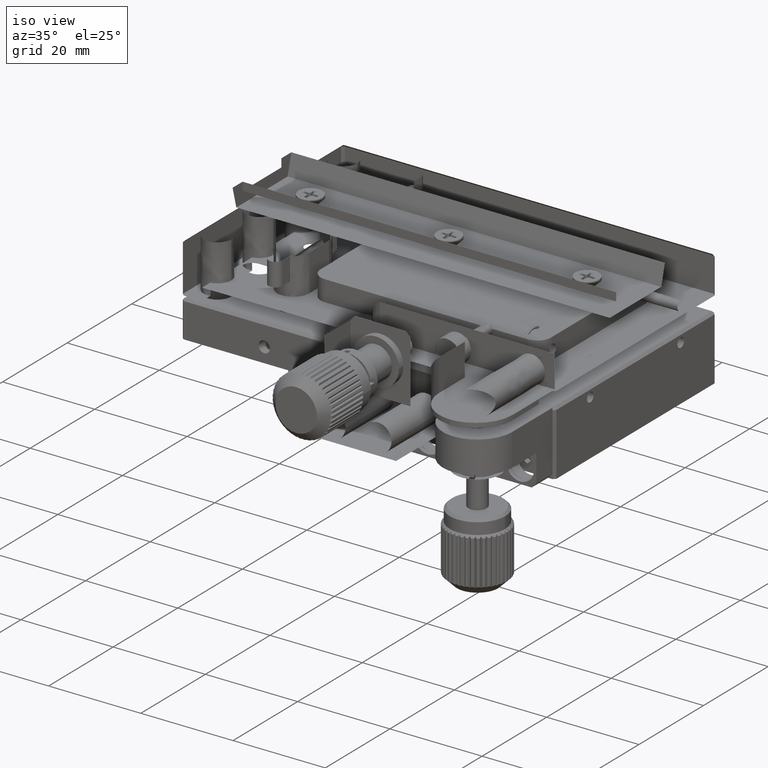
[diagram: clean part render]
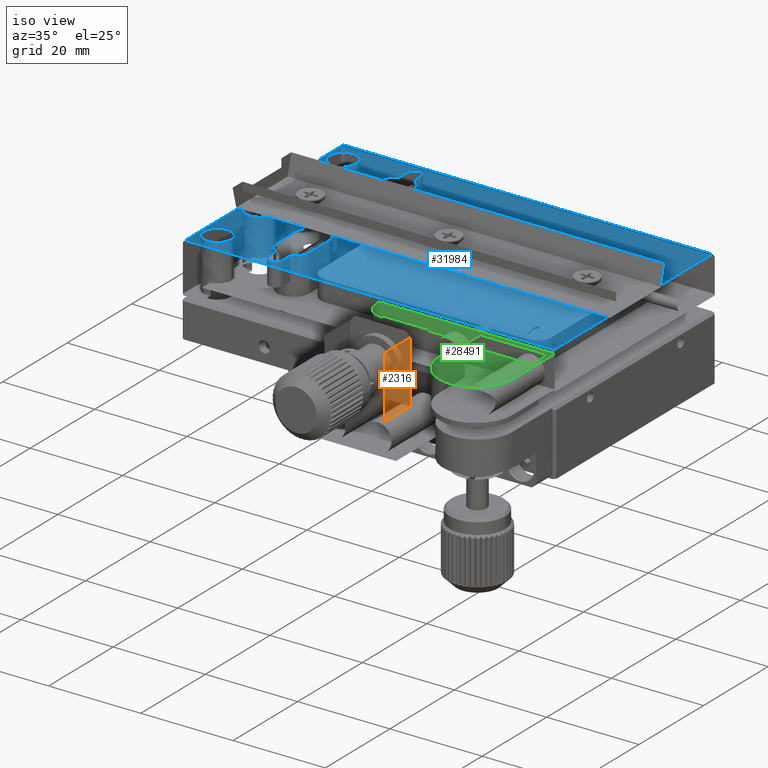
[diagram: same view with three faces highlighted in distinct colors, each labeled with its STEP entity id]
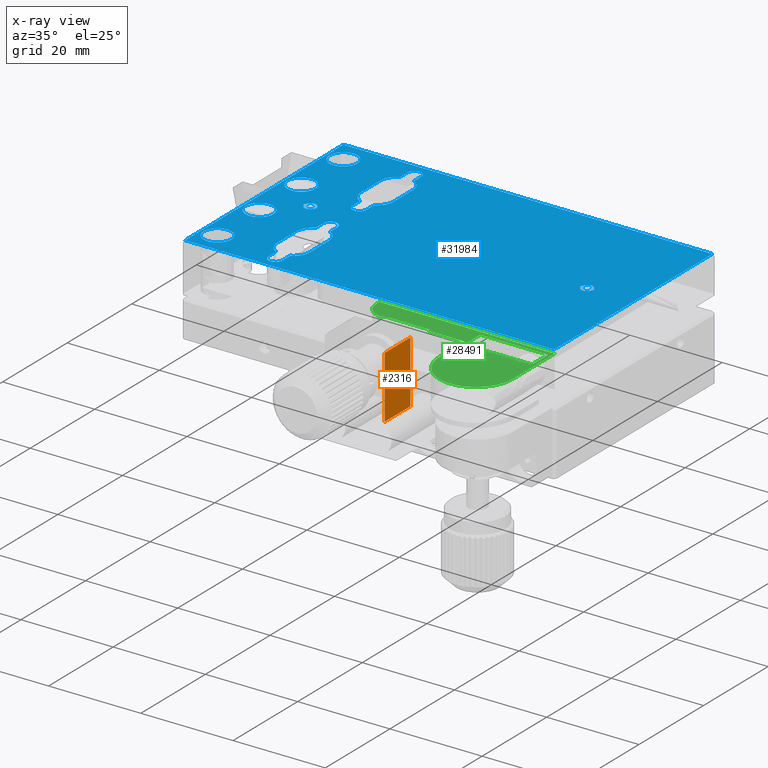
[diagram: x-ray of the same camera — body ghosted, the three highlighted faces saturated]
A machine part, iso view with three faces highlighted in distinct colors.
The next image is the same camera in x-ray (body ghosted, the three faces saturated) — at least one of them is partly hidden behind the body in this view.
Their STEP definitions:

[orange] entity #2316 — the highlighted face is a freeform B-spline surface patch.
#46 = ORIENTED_EDGE ( 'NONE', *, *, #35533, .T. ) ;
#118 = CARTESIAN_POINT ( 'NONE',  ( 26.25667729595609856, -45.44081999257650040, 5.804010068283790069 ) ) ;
#601 = CARTESIAN_POINT ( 'NONE',  ( 26.25667729595609856, -45.44081999257650040, 19.30401006828380162 ) ) ;
#1916 = ORIENTED_EDGE ( 'NONE', *, *, #7343, .T. ) ;
#2316 = ADVANCED_FACE ( 'NONE', ( #15119 ), #12460, .T. ) ;
#2801 = ORIENTED_EDGE ( 'NONE', *, *, #22588, .T. ) ;
#3648 = CARTESIAN_POINT ( 'NONE',  ( 26.25667729595609856, -53.44081999257650040, 5.804010068283790069 ) ) ;
#4691 = VERTEX_POINT ( 'NONE', #12736 ) ;
#5435 = EDGE_LOOP ( 'NONE', ( #1916, #2801, #46, #32428 ) ) ;
#5445 = B_SPLINE_CURVE_WITH_KNOTS ( 'NONE', 1,
 ( #24739, #24358 ),
 .UNSPECIFIED., .F., .F.,
 ( 2, 2 ),
 ( -1.000000000000000000, 0.000000000000000000 ),
 .UNSPECIFIED. ) ;
#6694 = CARTESIAN_POINT ( 'NONE',  ( 26.25667729595609856, -53.44081999257650040, 5.804010068283790069 ) ) ;
#6983 = CARTESIAN_POINT ( 'NONE',  ( 26.25667729595609856, -53.44081999257650040, 19.30401006828380162 ) ) ;
#7170 = B_SPLINE_CURVE_WITH_KNOTS ( 'NONE', 1,
 ( #118, #33498 ),
 .UNSPECIFIED., .F., .F.,
 ( 2, 2 ),
 ( 0.000000000000000000, 1.000000000000000000 ),
 .UNSPECIFIED. ) ;
#7343 = EDGE_CURVE ( 'NONE', #4691, #31590, #29345, .T. ) ;
#9193 = CARTESIAN_POINT ( 'NONE',  ( 26.25667729595609856, -53.44081999257650040, 19.30401006828380162 ) ) ;
#9683 = B_SPLINE_CURVE_WITH_KNOTS ( 'NONE', 1,
 ( #25862, #601 ),
 .UNSPECIFIED., .F., .F.,
 ( 2, 2 ),
 ( 0.000000000000000000, 1.000000000000000000 ),
 .UNSPECIFIED. ) ;
#9735 = CARTESIAN_POINT ( 'NONE',  ( 26.25667729595609856, -45.44081999257650040, 19.30401006828380162 ) ) ;
#12460 = B_SPLINE_SURFACE_WITH_KNOTS ( 'NONE', 1, 1, ( 
 ( #9193, #3648 ),
 ( #9735, #34989 ) ),
 .UNSPECIFIED., .F., .F., .F.,
 ( 2, 2 ),
 ( 2, 2 ),
 ( 0.000000000000000000, 1.000000000000000000 ),
 ( 0.000000000000000000, 1.000000000000000000 ),
 .UNSPECIFIED. ) ;
#12736 = CARTESIAN_POINT ( 'NONE',  ( 26.25667729595609856, -45.44081999257650040, 5.804010068283790069 ) ) ;
#15119 = FACE_OUTER_BOUND ( 'NONE', #5435, .T. ) ;
#22588 = EDGE_CURVE ( 'NONE', #31590, #28123, #5445, .T. ) ;
#24358 = CARTESIAN_POINT ( 'NONE',  ( 26.25667729595609856, -53.44081999257650040, 19.30401006828380162 ) ) ;
#24739 = CARTESIAN_POINT ( 'NONE',  ( 26.25667729595609856, -53.44081999257650040, 5.804010068283790069 ) ) ;
#25605 = CARTESIAN_POINT ( 'NONE',  ( 26.25667729595609856, -45.44081999257650040, 5.804010068283790069 ) ) ;
#25862 = CARTESIAN_POINT ( 'NONE',  ( 26.25667729595609856, -53.44081999257650040, 19.30401006828380162 ) ) ;
#28123 = VERTEX_POINT ( 'NONE', #6983 ) ;
#28337 = CARTESIAN_POINT ( 'NONE',  ( 26.25667729595609856, -45.44081999257650040, 19.30401006828380162 ) ) ;
#29345 = B_SPLINE_CURVE_WITH_KNOTS ( 'NONE', 1,
 ( #25605, #31120 ),
 .UNSPECIFIED., .F., .F.,
 ( 2, 2 ),
 ( -1.000000000000000000, 0.000000000000000000 ),
 .UNSPECIFIED. ) ;
#29843 = VERTEX_POINT ( 'NONE', #28337 ) ;
#30990 = EDGE_CURVE ( 'NONE', #4691, #29843, #7170, .T. ) ;
#31120 = CARTESIAN_POINT ( 'NONE',  ( 26.25667729595609856, -53.44081999257650040, 5.804010068283790069 ) ) ;
#31590 = VERTEX_POINT ( 'NONE', #6694 ) ;
#32428 = ORIENTED_EDGE ( 'NONE', *, *, #30990, .F. ) ;
#33498 = CARTESIAN_POINT ( 'NONE',  ( 26.25667729595609856, -45.44081999257650040, 19.30401006828380162 ) ) ;
#34989 = CARTESIAN_POINT ( 'NONE',  ( 26.25667729595609856, -45.44081999257650040, 5.804010068283790069 ) ) ;
#35533 = EDGE_CURVE ( 'NONE', #28123, #29843, #9683, .T. ) ;

[blue] entity #31984 — the highlighted face is a freeform B-spline surface patch.
#63 = CARTESIAN_POINT ( 'NONE',  ( -32.16720223655519817, 0.8455773216967255035, 17.00396032735410046 ) ) ;
#95 = CARTESIAN_POINT ( 'NONE',  ( -12.10828222654274278, -24.02592321471266601, 17.00396032735410046 ) ) ;
#192 = CARTESIAN_POINT ( 'NONE',  ( -26.84071667507282655, -27.77499220505900723, 17.00396032735410046 ) ) ;
#200 = CARTESIAN_POINT ( 'NONE',  ( -16.73015801049309914, -2.170698866685332629, 17.00396032735410046 ) ) ;
#213 = CARTESIAN_POINT ( 'NONE',  ( 7.335966255250286672, -7.684984425821336451, 17.00396032735409690 ) ) ;
#221 = CARTESIAN_POINT ( 'NONE',  ( 38.41159895364476284, -6.913516285345354895, 17.00396032735410046 ) ) ;
#350 = CARTESIAN_POINT ( 'NONE',  ( -16.74332270404390144, -1.934948170878150187, 17.00396032735410046 ) ) ;
#379 = CARTESIAN_POINT ( 'NONE',  ( -27.72775853595349460, -28.55436471480621563, 17.00396032735410046 ) ) ;
#441 = CARTESIAN_POINT ( 'NONE',  ( -13.74332270404389966, -13.27267051070980131, 17.00396032735410046 ) ) ;
#476 = CARTESIAN_POINT ( 'NONE',  ( -21.49332270404389789, -6.355567514734667078, 17.00396032735409690 ) ) ;
#523 = CARTESIAN_POINT ( 'NONE',  ( 35.78167729595615043, -6.434948170878150187, 17.00396032735410046 ) ) ;
#603 = CARTESIAN_POINT ( 'NONE',  ( 47.25667729595609501, -30.93494817087820081, 17.00396032735410046 ) ) ;
#649 = CARTESIAN_POINT ( 'NONE',  ( -12.46228339844514466, -24.58563051381780085, 17.00396032735410046 ) ) ;
#659 = CARTESIAN_POINT ( 'NONE',  ( -31.86272036660034601, 14.58062693079478223, 17.00396032735410756 ) ) ;
#758 = CARTESIAN_POINT ( 'NONE',  ( 8.731677295956149720, -6.434948170878140417, 17.00396032735410046 ) ) ;
#760 = CARTESIAN_POINT ( 'NONE',  ( 8.201473446959569813, -7.257975752814026293, 17.00396032735410756 ) ) ;
#761 = ORIENTED_EDGE ( 'NONE', *, *, #18133, .T. ) ;
#821 = B_SPLINE_CURVE_WITH_KNOTS ( 'NONE', 3,
 ( #11643, #28609, #200, #33751, #2786, #11827, #34117, #14055, #30981, #3143, #8869, #11102, #34295, #5729, #22333, #31350, #23060, #8513, #3326, #25288, #16994, #28239, #20838, #12539, #32059, #9402, #12184, #17540, #28779, #29129, #925, #3672, #3504, #23236 ),
 .UNSPECIFIED., .F., .F.,
 ( 4, 1, 1, 2, 2, 2, 1, 1, 2, 2, 2, 1, 1, 2, 2, 2, 1, 1, 2, 2, 4 ),
 ( 0.000000000000000000, 0.06249999999999597544, 0.09374999999999403255, 0.1093749999999935052, 0.1249999999999930056, 0.2499999999999884537, 0.3124999999999861222, 0.3437499999999840128, 0.3593749999999829581, 0.3749999999999819034, 0.4999999999999811262, 0.5624999999999806821, 0.5937499999999811262, 0.6093749999999812372, 0.6249999999999812372, 0.7499999999999876765, 0.8124999999999908962, 0.8437499999999925615, 0.8593749999999932276, 0.8749999999999937828, 1.000000000000000000 ),
 .UNSPECIFIED. ) ;
#830 = ORIENTED_EDGE ( 'NONE', *, *, #24036, .F. ) ;
#925 = CARTESIAN_POINT ( 'NONE',  ( -13.85741671481741122, -2.509234771535535202, 17.00396032735409690 ) ) ;
#1012 = CARTESIAN_POINT ( 'NONE',  ( -17.81187481808945705, 1.164600734814881466, 17.00396032735410046 ) ) ;
#1063 = CARTESIAN_POINT ( 'NONE',  ( -16.74332270404390144, 15.06505182912189866, 17.00396032735410046 ) ) ;
#1148 = EDGE_CURVE ( 'NONE', #9427, #8039, #12083, .T. ) ;
#1170 = CARTESIAN_POINT ( 'NONE',  ( -26.24332270404389789, -12.93494817087809956, 17.00396032735410046 ) ) ;
#1198 = CARTESIAN_POINT ( 'NONE',  ( -18.74332270404389789, 3.565051829121844928, 17.00396032735410046 ) ) ;
#1314 = FACE_BOUND ( 'NONE', #20417, .T. ) ;
#1338 = CARTESIAN_POINT ( 'NONE',  ( -16.00108558454201813, -29.24465363365112935, 17.00396032735410046 ) ) ;
#1371 = CARTESIAN_POINT ( 'NONE',  ( -11.74332270404389966, 3.565051829121844928, 17.00396032735410046 ) ) ;
#1425 = CARTESIAN_POINT ( 'NONE',  ( -13.83163585661377404, -10.42729343567074984, 17.00396032735410046 ) ) ;
#1427 = CARTESIAN_POINT ( 'NONE',  ( -17.31610230710784748, -25.27453905079808294, 17.00396032735410046 ) ) ;
#1436 = CARTESIAN_POINT ( 'NONE',  ( 6.035932170513434336, -6.122427603966531962, 17.00396032735410046 ) ) ;
#1471 = EDGE_LOOP ( 'NONE', ( #8233, #3663, #9196, #24300, #9113, #6856, #10400, #15830, #25758, #4194, #27341, #32124 ) ) ;
#1500 = CARTESIAN_POINT ( 'NONE',  ( -13.74332270404390144, 15.26394686902025910, 17.00396032735410401 ) ) ;
#1537 = CARTESIAN_POINT ( 'NONE',  ( -16.74332270404390144, -1.934948170878150187, 17.00396032735410046 ) ) ;
#1538 = VERTEX_POINT ( 'NONE', #13517 ) ;
#1579 = CARTESIAN_POINT ( 'NONE',  ( -12.10829022240879560, 11.15602181585650321, 17.00396032735410046 ) ) ;
#1586 = CARTESIAN_POINT ( 'NONE',  ( 38.44588200976674131, -6.049242901305547981, 17.00396032735410046 ) ) ;
#1616 = CARTESIAN_POINT ( 'NONE',  ( 8.445882009766693344, -6.049242901276859818, 17.00396032735410046 ) ) ;
#1632 = B_SPLINE_CURVE_WITH_KNOTS ( 'NONE', 1,
 ( #31355, #8696 ),
 .UNSPECIFIED., .F., .F.,
 ( 2, 2 ),
 ( 0.000000000000000000, 1.000000000000000000 ),
 .UNSPECIFIED. ) ;
#1704 = CARTESIAN_POINT ( 'NONE',  ( -14.04202913118558271, -28.85498431682807663, 17.00396032735410046 ) ) ;
#1740 = CARTESIAN_POINT ( 'NONE',  ( -12.46228339840570420, 1.414369486268084231, 17.00396032735410046 ) ) ;
#1746 = CARTESIAN_POINT ( 'NONE',  ( -26.31946205284428686, -12.15441174484283593, 17.00396032735410046 ) ) ;
#1762 = CARTESIAN_POINT ( 'NONE',  ( -26.31944317153262247, 12.28452633662443105, 17.00396032735410756 ) ) ;
#1804 = VERTEX_POINT ( 'NONE', #21034 ) ;
#1807 = CARTESIAN_POINT ( 'NONE',  ( 8.506677295956100338, -6.434948170878149298, 17.00396032735410046 ) ) ;
#1821 = VERTEX_POINT ( 'NONE', #25838 ) ;
#1841 = CARTESIAN_POINT ( 'NONE',  ( -22.66403374474782950, -7.684984425821339116, 17.00396032735410046 ) ) ;
#1892 = B_SPLINE_CURVE_WITH_KNOTS ( 'NONE', 3,
 ( #26328, #20457, #7140, #34801, #20809, #23381, #23740, #1427, #18050, #34985 ),
 .UNSPECIFIED., .F., .F.,
 ( 4, 2, 2, 2, 4 ),
 ( 0.000000000000000000, 0.2500000000000000000, 0.5000000000000000000, 0.7500000000000000000, 1.000000000000000000 ),
 .UNSPECIFIED. ) ;
#1960 = CARTESIAN_POINT ( 'NONE',  ( 37.73522243499927242, -5.280017406376776634, 17.00396032735409690 ) ) ;
#1987 = CARTESIAN_POINT ( 'NONE',  ( 8.506677295956100338, -6.355567514712811672, 17.00396032735410401 ) ) ;
#2116 = CARTESIAN_POINT ( 'NONE',  ( -29.64111410529976709, -9.934941541006717003, 17.00396032735410046 ) ) ;
#2177 = CARTESIAN_POINT ( 'NONE',  ( 6.156569483209735516, -5.838406381048703686, 17.00396032735410046 ) ) ;
#2179 = CARTESIAN_POINT ( 'NONE',  ( -18.74332270404389789, 9.565051829121850702, 17.00396032735410046 ) ) ;
#2188 = CARTESIAN_POINT ( 'NONE',  ( -31.64591935694789626, -1.774982829062257794, 17.00396032735410046 ) ) ;
#2212 = CARTESIAN_POINT ( 'NONE',  ( -21.59747674536703599, -6.934960762350624641, 17.00396032735410046 ) ) ;
#2244 = CARTESIAN_POINT ( 'NONE',  ( -16.00109065830820754, 16.37476954127831164, 17.00396032735410756 ) ) ;
#2296 = CARTESIAN_POINT ( 'NONE',  ( -27.40327866984573646, 2.467657858075238853, 17.00396032735410401 ) ) ;
#2350 = CARTESIAN_POINT ( 'NONE',  ( -16.47368964474794595, -10.06570733787466665, 17.00396032735410401 ) ) ;
#2404 = EDGE_CURVE ( 'NONE', #8039, #32100, #18521, .T. ) ;
#2436 = CARTESIAN_POINT ( 'NONE',  ( 6.080271589764396190, -6.857986292506644155, 17.00396032735410756 ) ) ;
#2460 = EDGE_LOOP ( 'NONE', ( #830, #12738, #30889, #5719 ) ) ;
#2470 = CARTESIAN_POINT ( 'NONE',  ( -11.78940960607780930, -15.77912923918025179, 17.00396032735410046 ) ) ;
#2569 = CARTESIAN_POINT ( 'NONE',  ( -23.56635029281643412, -7.379744315040769109, 17.00396032735410401 ) ) ;
#2620 = CARTESIAN_POINT ( 'NONE',  ( 36.00667729595609501, -6.514328827041183878, 17.00396032735410046 ) ) ;
#2681 = CARTESIAN_POINT ( 'NONE',  ( -11.78939578741973726, -23.09075340327058612, 17.00396032735410046 ) ) ;
#2786 = CARTESIAN_POINT ( 'NONE',  ( -16.67036836061655691, -2.397810675025809246, 17.00396032735410401 ) ) ;
#2797 = CARTESIAN_POINT ( 'NONE',  ( -16.74332270404390144, -25.59722583104655058, 17.00396032735410046 ) ) ;
#2798 = CARTESIAN_POINT ( 'NONE',  ( 7.098099377367727669, -7.684875660991694168, 17.00396032735410401 ) ) ;
#2805 = CARTESIAN_POINT ( 'NONE',  ( 38.01873542335074774, -7.440543436497606855, 17.00396032735410401 ) ) ;
#2833 = CARTESIAN_POINT ( 'NONE',  ( -32.74332270404384815, -30.93494817087820081, 17.00396032735410046 ) ) ;
#2984 = CARTESIAN_POINT ( 'NONE',  ( 38.28195194037252236, -7.159363195675640057, 17.00396032735410046 ) ) ;
#3045 = CARTESIAN_POINT ( 'NONE',  ( -11.74332270404388012, -22.43494817087820081, 17.00396032735410046 ) ) ;
#3056 = CARTESIAN_POINT ( 'NONE',  ( -23.68811885501974146, -5.611920588898277273, 17.00396032735410401 ) ) ;
#3143 = CARTESIAN_POINT ( 'NONE',  ( -16.23092312419410277, -3.068724899212875723, 17.00396032735410401 ) ) ;
#3159 = CARTESIAN_POINT ( 'NONE',  ( 7.586010348641783807, -7.642027658485042174, 17.00396032735410401 ) ) ;
#3192 = CARTESIAN_POINT ( 'NONE',  ( -29.64111410528283841, 3.065058458993232371, 17.00396032735410401 ) ) ;
#3326 = CARTESIAN_POINT ( 'NONE',  ( -15.00773251246396001, -3.421846950910793161, 17.00396032735410046 ) ) ;
#3417 = CARTESIAN_POINT ( 'NONE',  ( -18.74332270404389433, 3.233905203399818795, 17.00396032735410046 ) ) ;
#3466 = B_SPLINE_CURVE_WITH_KNOTS ( 'NONE', 1,
 ( #28041, #5342 ),
 .UNSPECIFIED., .F., .F.,
 ( 2, 2 ),
 ( 0.000000000000000000, 1.000000000000000000 ),
 .UNSPECIFIED. ) ;
#3504 = CARTESIAN_POINT ( 'NONE',  ( -13.74332270404389966, -2.125886589923263958, 17.00396032735410401 ) ) ;
#3663 = ORIENTED_EDGE ( 'NONE', *, *, #28048, .T. ) ;
#3665 = CARTESIAN_POINT ( 'NONE',  ( -32.24332270404389078, -26.33275557890760510, 17.00396032735410046 ) ) ;
#3672 = CARTESIAN_POINT ( 'NONE',  ( -13.77842855351267737, -2.309933944704201103, 17.00396032735410046 ) ) ;
#3781 = EDGE_CURVE ( 'NONE', #25016, #13577, #31101, .T. ) ;
#4028 = VERTEX_POINT ( 'NONE', #12473 ) ;
#4047 = CARTESIAN_POINT ( 'NONE',  ( -17.81186836299282916, -14.03447872021095399, 17.00396032735409690 ) ) ;
#4067 = FACE_OUTER_BOUND ( 'NONE', #2460, .T. ) ;
#4087 = EDGE_CURVE ( 'NONE', #1821, #23392, #17017, .T. ) ;
#4108 = CARTESIAN_POINT ( 'NONE',  ( -26.84071667510482229, -14.77499220508260080, 17.00396032735410401 ) ) ;
#4145 = CARTESIAN_POINT ( 'NONE',  ( -26.24332270404390499, 12.66720976898952067, 17.00396032735410046 ) ) ;
#4162 = CARTESIAN_POINT ( 'NONE',  ( 38.07970488473182513, -5.490152026726770274, 17.00396032735410401 ) ) ;
#4164 = VERTEX_POINT ( 'NONE', #10247 ) ;
#4181 = CARTESIAN_POINT ( 'NONE',  ( -13.83913722750219932, -10.40683619695436590, 17.00396032735410046 ) ) ;
#4194 = ORIENTED_EDGE ( 'NONE', *, *, #35390, .T. ) ;
#4270 = CARTESIAN_POINT ( 'NONE',  ( -14.48555474976297930, -29.24466588301730141, 17.00396032735410046 ) ) ;
#4463 = B_SPLINE_CURVE_WITH_KNOTS ( 'NONE', 1,
 ( #28021, #30584 ),
 .UNSPECIFIED., .F., .F.,
 ( 2, 2 ),
 ( 0.000000000000000000, 1.000000000000000000 ),
 .UNSPECIFIED. ) ;
#4527 = CARTESIAN_POINT ( 'NONE',  ( 36.12858206971507968, -5.895957464318495767, 17.00396032735410046 ) ) ;
#4559 = CARTESIAN_POINT ( 'NONE',  ( 8.262272547840264991, -5.672890029743936857, 17.00396032735410401 ) ) ;
#4589 = ORIENTED_EDGE ( 'NONE', *, *, #14958, .T. ) ;
#4593 = CARTESIAN_POINT ( 'NONE',  ( -23.84223966129807337, -7.055213041701094312, 17.00396032735410046 ) ) ;
#4598 = CARTESIAN_POINT ( 'NONE',  ( -31.64592873297798903, -24.09490413662421204, 17.00396032735410046 ) ) ;
#4708 = CARTESIAN_POINT ( 'NONE',  ( 38.42682747466470516, -5.994848094407941197, 17.00396032735410046 ) ) ;
#4728 = CARTESIAN_POINT ( 'NONE',  ( -14.64332291218713955, -9.559923013994991337, 17.00396032735410046 ) ) ;
#4806 = CARTESIAN_POINT ( 'NONE',  ( -14.32328655807811479, 16.26634540197676415, 17.00396032735410046 ) ) ;
#4852 = CARTESIAN_POINT ( 'NONE',  ( -11.74332270404389966, -16.43494817087820081, 17.00396032735410046 ) ) ;
#4878 = CARTESIAN_POINT ( 'NONE',  ( -29.64111410537612201, 10.06505845899327767, 17.00396032735410046 ) ) ;
#4988 = CARTESIAN_POINT ( 'NONE',  ( -14.04203850645000529, 15.98507859982668045, 17.00396032735409690 ) ) ;
#5050 = CARTESIAN_POINT ( 'NONE',  ( -32.24332270404390499, -12.53710611066835945, 17.00396032735410401 ) ) ;
#5100 = CARTESIAN_POINT ( 'NONE',  ( -13.74332270404389966, 0.4027741689534609648, 17.00396032735410046 ) ) ;
#5102 = CARTESIAN_POINT ( 'NONE',  ( -15.05295420855637900, -9.435020712104268625, 17.00396032735410046 ) ) ;
#5111 = CARTESIAN_POINT ( 'NONE',  ( 8.495706717997110857, -6.238517224219756407, 17.00396032735409690 ) ) ;
#5162 = CARTESIAN_POINT ( 'NONE',  ( -13.74332270404389966, -27.93494817087819726, 17.00396032735410046 ) ) ;
#5193 = ORIENTED_EDGE ( 'NONE', *, *, #27685, .F. ) ;
#5206 = CARTESIAN_POINT ( 'NONE',  ( -18.74332270404389789, 9.565051829121850702, 17.00396032735410046 ) ) ;
#5327 = CARTESIAN_POINT ( 'NONE',  ( -21.58840104635519452, -6.913516285336219980, 17.00396032735410046 ) ) ;
#5342 = CARTESIAN_POINT ( 'NONE',  ( -18.74332270404389789, 3.565051829121844928, 17.00396032735410046 ) ) ;
#5387 = ORIENTED_EDGE ( 'NONE', *, *, #34426, .T. ) ;
#5488 = CARTESIAN_POINT ( 'NONE',  ( -27.40328804589570666, -2.337544823838149988, 17.00396032735410046 ) ) ;
#5559 = CARTESIAN_POINT ( 'NONE',  ( -16.74332270404390144, -27.93494817087819726, 17.00396032735410046 ) ) ;
#5567 = CARTESIAN_POINT ( 'NONE',  ( 37.69677737242489002, -7.605098349590472928, 17.00396032735409690 ) ) ;
#5598 = B_SPLINE_CURVE_WITH_KNOTS ( 'NONE', 1,
 ( #30993, #26013 ),
 .UNSPECIFIED., .F., .F.,
 ( 2, 2 ),
 ( 0.000000000000000000, 1.000000000000000000 ),
 .UNSPECIFIED. ) ;
#5718 = EDGE_CURVE ( 'NONE', #18271, #24257, #8968, .T. ) ;
#5719 = ORIENTED_EDGE ( 'NONE', *, *, #2404, .T. ) ;
#5729 = CARTESIAN_POINT ( 'NONE',  ( -15.84332249590687169, -3.309973327761951634, 17.00396032735410046 ) ) ;
#5741 = CARTESIAN_POINT ( 'NONE',  ( 8.477422421398790320, -6.747468737784672044, 17.00396032735410401 ) ) ;
#5742 = ORIENTED_EDGE ( 'NONE', *, *, #30452, .T. ) ;
#5820 = CARTESIAN_POINT ( 'NONE',  ( -23.18342278051549243, -5.264797992165470397, 17.00396032735409690 ) ) ;
#5929 = CARTESIAN_POINT ( 'NONE',  ( 36.01764787391511646, -6.631379117532505418, 17.00396032735410046 ) ) ;
#5959 = CARTESIAN_POINT ( 'NONE',  ( -31.08335736228731605, 2.467648481913367053, 17.00396032735410756 ) ) ;
#6081 = CARTESIAN_POINT ( 'NONE',  ( -26.31944317153261537, -26.71547366337000540, 17.00396032735410046 ) ) ;
#6123 = B_SPLINE_CURVE_WITH_KNOTS ( 'NONE', 3,
 ( #30082, #1500, #35243, #12944, #4988, #4806, #18485, #19227, #15901, #35429, #10743, #2244, #35615, #15716, #16091, #10178, #10359, #7582 ),
 .UNSPECIFIED., .F., .F.,
 ( 4, 2, 2, 2, 2, 2, 2, 2, 4 ),
 ( 0.000000000000000000, 0.1249999999999995837, 0.2499999999999991673, 0.3749999999999987788, 0.4999999999999983347, 0.6249999999999990008, 0.7499999999999996669, 0.8750000000000004441, 1.000000000000000000 ),
 .UNSPECIFIED. ) ;
#6172 = CARTESIAN_POINT ( 'NONE',  ( -13.74332270404386058, -25.59722583104655058, 17.00396032735410046 ) ) ;
#6184 = CARTESIAN_POINT ( 'NONE',  ( -22.93959318116311863, -5.195855302682068633, 17.00396032735410756 ) ) ;
#6357 = CARTESIAN_POINT ( 'NONE',  ( -22.24331010937045505, -5.289102215410270702, 17.00396032735409690 ) ) ;
#6499 = CARTESIAN_POINT ( 'NONE',  ( -13.93362387276570047, -28.69272705970564274, 17.00396032735410046 ) ) ;
#6663 = EDGE_CURVE ( 'NONE', #10675, #4028, #24345, .T. ) ;
#6678 = CARTESIAN_POINT ( 'NONE',  ( -16.44460690166389583, -28.85497494157285203, 17.00396032735410046 ) ) ;
#6745 = CARTESIAN_POINT ( 'NONE',  ( 36.15656948318424924, -5.838406381079642493, 17.00396032735410401 ) ) ;
#6856 = ORIENTED_EDGE ( 'NONE', *, *, #36059, .T. ) ;
#6870 = CARTESIAN_POINT ( 'NONE',  ( -28.46278627799502914, -15.85880882206064335, 17.00396032735410046 ) ) ;
#6928 = CARTESIAN_POINT ( 'NONE',  ( 37.79566800829240947, -5.306852950428228688, 17.00396032735410401 ) ) ;
#6948 = CARTESIAN_POINT ( 'NONE',  ( -13.79488442045115448, -10.53957891520113677, 17.00396032735409690 ) ) ;
#7017 = B_SPLINE_CURVE_WITH_KNOTS ( 'NONE', 3,
 ( #20317, #26011, #34983, #6948, #29453, #1425, #4181, #15470, #23921, #24481, #16559, #19150, #36441, #4728, #30366, #16734, #5102, #11210, #13433, #30546, #32943, #35720, #7886, #27978, #7694, #18966, #2350, #24675, #16380, #27442, #33314, #7508, #13974, #36266 ),
 .UNSPECIFIED., .F., .F.,
 ( 4, 1, 1, 2, 2, 2, 1, 1, 2, 2, 2, 1, 1, 2, 2, 2, 1, 1, 2, 2, 4 ),
 ( 0.000000000000000000, 0.06249999999999883427, 0.09374999999999882039, 0.1093749999999993755, 0.1249999999999999167, 0.2500000000000019984, 0.3125000000000030531, 0.3437500000000038303, 0.3593750000000042744, 0.3750000000000046629, 0.5000000000000055511, 0.5625000000000058842, 0.5937500000000062172, 0.6093750000000058842, 0.6250000000000054401, 0.7500000000000004441, 0.8124999999999982236, 0.8437499999999976685, 0.8593749999999983347, 0.8749999999999988898, 1.000000000000000000 ),
 .UNSPECIFIED. ) ;
#7058 = CARTESIAN_POINT ( 'NONE',  ( -30.75888179794405630, -15.55435246439532193, 17.00396032735410046 ) ) ;
#7099 = B_SPLINE_CURVE_WITH_KNOTS ( 'NONE', 1,
 ( #11863, #34330 ),
 .UNSPECIFIED., .F., .F.,
 ( 2, 2 ),
 ( 0.000000000000000000, 1.000000000000000000 ),
 .UNSPECIFIED. ) ;
#7109 = CARTESIAN_POINT ( 'NONE',  ( -12.67477058994971095, 11.96550292340568333, 17.00396032735410046 ) ) ;
#7140 = CARTESIAN_POINT ( 'NONE',  ( -18.69723580205175395, -23.09076710247521547, 17.00396032735410046 ) ) ;
#7188 = CARTESIAN_POINT ( 'NONE',  ( -16.74332270404384815, -13.27267051070980131, 17.00396032735410046 ) ) ;
#7243 = VERTEX_POINT ( 'NONE', #15537 ) ;
#7245 = CARTESIAN_POINT ( 'NONE',  ( -26.24332270404389433, -13.33279023105855465, 17.00396032735409335 ) ) ;
#7297 = CARTESIAN_POINT ( 'NONE',  ( -16.74332270404390144, -27.93494817087819726, 17.00396032735410046 ) ) ;
#7304 = CARTESIAN_POINT ( 'NONE',  ( 36.49461916853666565, -5.429352905287362141, 17.00396032735410046 ) ) ;
#7481 = CARTESIAN_POINT ( 'NONE',  ( -13.44409838719528594, 12.58539493340776971, 17.00396032735410046 ) ) ;
#7488 = CARTESIAN_POINT ( 'NONE',  ( 36.03593217051344766, -6.122427604013373603, 17.00396032735410046 ) ) ;
#7508 = CARTESIAN_POINT ( 'NONE',  ( -16.70821685457509531, -10.55996239700819928, 17.00396032735409335 ) ) ;
#7517 = CARTESIAN_POINT ( 'NONE',  ( 7.415255214523937433, -5.185020680769621748, 17.00396032735410401 ) ) ;
#7552 = CARTESIAN_POINT ( 'NONE',  ( -21.61522747781873832, -6.973938877458941477, 17.00396032735410401 ) ) ;
#7582 = CARTESIAN_POINT ( 'NONE',  ( -16.74332270404390144, 15.06505182912189866, 17.00396032735410046 ) ) ;
#7641 = CARTESIAN_POINT ( 'NONE',  ( -31.08335736227543578, -10.53235151805793812, 17.00396032735410046 ) ) ;
#7657 = B_SPLINE_SURFACE_WITH_KNOTS ( 'NONE', 1, 1, ( 
 ( #17394, #15354 ),
 ( #31385, #603 ) ),
 .UNSPECIFIED., .F., .F., .F.,
 ( 2, 2 ),
 ( 2, 2 ),
 ( 0.000000000000000000, 1.000000000000000000 ),
 ( 0.000000000000000000, 1.000000000000000000 ),
 .UNSPECIFIED. ) ;
#7694 = CARTESIAN_POINT ( 'NONE',  ( -16.15774975131232338, -9.728168484416444883, 17.00396032735410046 ) ) ;
#7742 = CARTESIAN_POINT ( 'NONE',  ( -22.54705222690672883, -7.674041039069756209, 17.00396032735410756 ) ) ;
#7747 = CARTESIAN_POINT ( 'NONE',  ( -26.24332270404389078, -25.53714076292918733, 17.00396032735410046 ) ) ;
#7886 = CARTESIAN_POINT ( 'NONE',  ( -15.77143467796857124, -9.530762694337399310, 17.00396032735409690 ) ) ;
#7895 = CARTESIAN_POINT ( 'NONE',  ( 7.060406818840212928, -5.195855302682059751, 17.00396032735410046 ) ) ;
#7976 = CARTESIAN_POINT ( 'NONE',  ( 6.049645392962190726, -6.764401575684884094, 17.00396032735410401 ) ) ;
#8039 = VERTEX_POINT ( 'NONE', #8558 ) ;
#8116 = CARTESIAN_POINT ( 'NONE',  ( -21.64321489129677190, -7.031489960709569331, 17.00396032735410401 ) ) ;
#8130 = CARTESIAN_POINT ( 'NONE',  ( -13.74332270404389966, -10.93494817087809956, 17.00396032735410046 ) ) ;
#8160 = CARTESIAN_POINT ( 'NONE',  ( 6.532262259120242831, -7.460222803259543234, 17.00396032735409690 ) ) ;
#8178 = CARTESIAN_POINT ( 'NONE',  ( -17.81186836299325549, 11.96552127979310320, 17.00396032735409690 ) ) ;
#8206 = CARTESIAN_POINT ( 'NONE',  ( -27.72776361025045944, -10.31554387733913813, 17.00396032735410046 ) ) ;
#8233 = ORIENTED_EDGE ( 'NONE', *, *, #36427, .F. ) ;
#8306 = CARTESIAN_POINT ( 'NONE',  ( -26.24332270404389789, -25.93494817087809778, 17.00396032735410046 ) ) ;
#8458 = CARTESIAN_POINT ( 'NONE',  ( -28.46278627800829497, -2.858808822060654009, 17.00396032735410046 ) ) ;
#8513 = CARTESIAN_POINT ( 'NONE',  ( -15.14813845630841804, -3.434984441497252572, 17.00396032735410046 ) ) ;
#8534 = CARTESIAN_POINT ( 'NONE',  ( 38.38477252220773295, -6.973938877425644556, 17.00396032735409690 ) ) ;
#8558 = CARTESIAN_POINT ( 'NONE',  ( -32.74332270404384815, 18.06505182912190222, 17.00396032735410046 ) ) ;
#8681 = B_SPLINE_CURVE_WITH_KNOTS ( 'NONE', 3,
 ( #32489, #9464, #26970, #18318, #6678, #26784, #1338, #26417, #9281, #12786, #20541, #4270, #9824, #1704, #6499, #31940, #12962, #17783 ),
 .UNSPECIFIED., .F., .F.,
 ( 4, 2, 2, 2, 2, 2, 2, 2, 4 ),
 ( 0.000000000000000000, 0.1250000000000000000, 0.2500000000000000000, 0.3750000000000000000, 0.5000000000000000000, 0.6250000000000000000, 0.7500000000000000000, 0.8750000000000000000, 1.000000000000000000 ),
 .UNSPECIFIED. ) ;
#8696 = CARTESIAN_POINT ( 'NONE',  ( -11.74332270404389966, 9.565051829121850702, 17.00396032735410046 ) ) ;
#8706 = CARTESIAN_POINT ( 'NONE',  ( 7.642305196322327632, -7.624183474797046500, 17.00396032735410046 ) ) ;
#8711 = CARTESIAN_POINT ( 'NONE',  ( 36.77813215691127624, -7.589878935380213854, 17.00396032735410046 ) ) ;
#8734 = EDGE_CURVE ( 'NONE', #20468, #32403, #9434, .T. ) ;
#8861 = CARTESIAN_POINT ( 'NONE',  ( -26.24332270404390144, -26.33279023100492466, 17.00396032735410401 ) ) ;
#8869 = CARTESIAN_POINT ( 'NONE',  ( -16.11256354704229565, -3.165315101605754577, 17.00396032735410046 ) ) ;
#8892 = CARTESIAN_POINT ( 'NONE',  ( 36.25108204415285229, -7.197006312049981425, 17.00396032735410046 ) ) ;
#8963 = CARTESIAN_POINT ( 'NONE',  ( -21.64440574676854823, -5.814683300072368333, 17.00396032735410046 ) ) ;
#8968 = B_SPLINE_CURVE_WITH_KNOTS ( 'NONE', 3,
 ( #14418, #3665, #11457, #17351, #31341, #9037, #12176, #31696, #22688, #14778, #25645, #379, #23403, #192, #28772, #6081, #8861, #25818 ),
 .UNSPECIFIED., .F., .F.,
 ( 4, 2, 2, 2, 2, 2, 2, 2, 4 ),
 ( 0.000000000000000000, 0.1250000000000000000, 0.2500000000000000000, 0.3750000000000000000, 0.5000000000000000000, 0.6250000000000000000, 0.7500000000000000000, 0.8750000000000000000, 1.000000000000000000 ),
 .UNSPECIFIED. ) ;
#9017 = CARTESIAN_POINT ( 'NONE',  ( 47.25667729595609501, 18.06505182912190222, 17.00396032735410046 ) ) ;
#9037 = CARTESIAN_POINT ( 'NONE',  ( -31.08336673826755003, -28.33755419983248558, 17.00396032735410046 ) ) ;
#9068 = CARTESIAN_POINT ( 'NONE',  ( 36.66013549710981323, -7.535055974625255004, 17.00396032735410401 ) ) ;
#9103 = CARTESIAN_POINT ( 'NONE',  ( -16.74332270404390144, -25.59722583104655058, 17.00396032735410046 ) ) ;
#9113 = ORIENTED_EDGE ( 'NONE', *, *, #29028, .T. ) ;
#9118 = CARTESIAN_POINT ( 'NONE',  ( -32.24332270404389789, -13.33275557886433127, 17.00396032735410401 ) ) ;
#9137 = CARTESIAN_POINT ( 'NONE',  ( -23.89824436173257283, -5.956380056425883751, 17.00396032735410046 ) ) ;
#9161 = CARTESIAN_POINT ( 'NONE',  ( -13.74332270404389966, 12.72732948929020047, 17.00396032735410046 ) ) ;
#9177 = CARTESIAN_POINT ( 'NONE',  ( -16.74332270404384815, -13.27267051070980131, 17.00396032735410046 ) ) ;
#9196 = ORIENTED_EDGE ( 'NONE', *, *, #16070, .F. ) ;
#9244 = EDGE_CURVE ( 'NONE', #29231, #30224, #21329, .T. ) ;
#9281 = CARTESIAN_POINT ( 'NONE',  ( -15.44220173795869933, -29.43494154160568854, 17.00396032735410046 ) ) ;
#9301 = CARTESIAN_POINT ( 'NONE',  ( -21.26832270404390357, -6.434948170878140417, 17.00396032735410046 ) ) ;
#9316 = CARTESIAN_POINT ( 'NONE',  ( -30.75888687208746219, 15.68446837306167829, 17.00396032735410401 ) ) ;
#9317 = CARTESIAN_POINT ( 'NONE',  ( -23.99332270404379486, -6.275800399575434341, 17.00396032735409335 ) ) ;
#9402 = CARTESIAN_POINT ( 'NONE',  ( -14.10954596999584787, -2.922548585309438174, 17.00396032735410046 ) ) ;
#9427 = VERTEX_POINT ( 'NONE', #30132 ) ;
#9434 = B_SPLINE_CURVE_WITH_KNOTS ( 'NONE', 1,
 ( #25614, #1063 ),
 .UNSPECIFIED., .F., .F.,
 ( 2, 2 ),
 ( 0.000000000000000000, 1.000000000000000000 ),
 .UNSPECIFIED. ) ;
#9464 = CARTESIAN_POINT ( 'NONE',  ( -16.74332270404389789, -28.13384321075335137, 17.00396032735410046 ) ) ;
#9494 = CARTESIAN_POINT ( 'NONE',  ( -32.24332270404389789, 13.06505182912189866, 17.00396032735410046 ) ) ;
#9495 = CARTESIAN_POINT ( 'NONE',  ( -21.49332270404389789, -6.434948170878149298, 17.00396032735410046 ) ) ;
#9531 = CARTESIAN_POINT ( 'NONE',  ( 38.35559425324063199, -5.814683300069057204, 17.00396032735410046 ) ) ;
#9669 = CARTESIAN_POINT ( 'NONE',  ( -26.31946205288702956, 13.84558825519351188, 17.00396032735410046 ) ) ;
#9672 = CARTESIAN_POINT ( 'NONE',  ( -13.17053664585612793, 0.7254793055398813806, 17.00396032735410046 ) ) ;
#9677 = CARTESIAN_POINT ( 'NONE',  ( 47.25667729595609501, 18.06505182912190222, 17.00396032735410046 ) ) ;
#9710 = CARTESIAN_POINT ( 'NONE',  ( 36.23140265156165185, -5.710533146055486675, 17.00396032735410046 ) ) ;
#9824 = CARTESIAN_POINT ( 'NONE',  ( -14.32329593334254447, -29.13623236848796338, 17.00396032735410046 ) ) ;
#9836 = CARTESIAN_POINT ( 'NONE',  ( -28.84553130269678434, -15.93495480072782833, 17.00396032735410401 ) ) ;
#9880 = CARTESIAN_POINT ( 'NONE',  ( -32.24332270404389789, 13.06505182912189866, 17.00396032735410046 ) ) ;
#9883 = CARTESIAN_POINT ( 'NONE',  ( -13.74332270404389966, 15.06505182912189866, 17.00396032735410046 ) ) ;
#9897 = CARTESIAN_POINT ( 'NONE',  ( 37.85321909474042457, -5.334840367114740189, 17.00396032735409335 ) ) ;
#10070 = CARTESIAN_POINT ( 'NONE',  ( -26.62392504148747818, 11.54947672742885700, 17.00396032735409690 ) ) ;
#10077 = CARTESIAN_POINT ( 'NONE',  ( -13.17054310100672332, 12.40464270905438049, 17.00396032735410046 ) ) ;
#10083 = B_SPLINE_CURVE_WITH_KNOTS ( 'NONE', 1,
 ( #1537, #18522 ),
 .UNSPECIFIED., .F., .F.,
 ( 2, 2 ),
 ( 0.000000000000000000, 1.000000000000000000 ),
 .UNSPECIFIED. ) ;
#10178 = CARTESIAN_POINT ( 'NONE',  ( -16.70526247029954092, 15.45532323740712322, 17.00396032735410046 ) ) ;
#10235 = CARTESIAN_POINT ( 'NONE',  ( -31.86272036660033891, -11.41937306926239515, 17.00396032735410046 ) ) ;
#10247 = CARTESIAN_POINT ( 'NONE',  ( -13.74332270404389966, -1.934948170878150187, 17.00396032735410046 ) ) ;
#10293 = CARTESIAN_POINT ( 'NONE',  ( 6.494619168497779427, -5.429352905334411616, 17.00396032735409690 ) ) ;
#10329 = CARTESIAN_POINT ( 'NONE',  ( -23.05602707421104114, -7.655620441824527944, 17.00396032735410046 ) ) ;
#10359 = CARTESIAN_POINT ( 'NONE',  ( -16.74332270404390144, 15.26398152122457752, 17.00396032735410401 ) ) ;
#10400 = ORIENTED_EDGE ( 'NONE', *, *, #22149, .F. ) ;
#10447 = CARTESIAN_POINT ( 'NONE',  ( -12.46227540257940980, 11.71573922916109645, 17.00396032735410046 ) ) ;
#10448 = VERTEX_POINT ( 'NONE', #1198 ) ;
#10483 = CARTESIAN_POINT ( 'NONE',  ( 8.355594253209941868, -5.814683300065182969, 17.00396032735410401 ) ) ;
#10496 = CARTESIAN_POINT ( 'NONE',  ( -32.24332270404389789, 0.06505182912185709931, 17.00396032735410046 ) ) ;
#10584 = CARTESIAN_POINT ( 'NONE',  ( -17.31610876222590534, 12.40462435266709029, 17.00396032735410046 ) ) ;
#10675 = VERTEX_POINT ( 'NONE', #17238 ) ;
#10711 = CARTESIAN_POINT ( 'NONE',  ( -22.41398965135572041, -7.642027658485010200, 17.00396032735409690 ) ) ;
#10743 = CARTESIAN_POINT ( 'NONE',  ( -15.63360504687486774, 16.52697271449935812, 17.00396032735410046 ) ) ;
#10827 = VERTEX_POINT ( 'NONE', #12059 ) ;
#10881 = CARTESIAN_POINT ( 'NONE',  ( -13.74332270404389966, 0.4027741689534609648, 17.00396032735410046 ) ) ;
#10885 = CARTESIAN_POINT ( 'NONE',  ( -23.33986450282403879, -7.535055974656331479, 17.00396032735410046 ) ) ;
#10933 = CARTESIAN_POINT ( 'NONE',  ( 6.006677295956098561, -6.514328827026467650, 17.00396032735410046 ) ) ;
#10978 = CARTESIAN_POINT ( 'NONE',  ( -26.62390616017579603, -11.41938400272281484, 17.00396032735409690 ) ) ;
#11026 = EDGE_CURVE ( 'NONE', #13577, #25016, #21583, .T. ) ;
#11077 = CARTESIAN_POINT ( 'NONE',  ( -26.31946205289126794, -25.15441174478302244, 17.00396032735410046 ) ) ;
#11102 = CARTESIAN_POINT ( 'NONE',  ( -15.95912996171047737, -3.255105564295110110, 17.00396032735410046 ) ) ;
#11127 = CARTESIAN_POINT ( 'NONE',  ( 37.33596625522218204, -7.684984425826400845, 17.00396032735409690 ) ) ;
#11136 = CARTESIAN_POINT ( 'NONE',  ( -18.69724962066802121, 10.22085706153955087, 17.00396032735410046 ) ) ;
#11200 = EDGE_CURVE ( 'NONE', #28492, #1804, #31239, .T. ) ;
#11210 = CARTESIAN_POINT ( 'NONE',  ( -15.33850695178766266, -9.434911900265147366, 17.00396032735410046 ) ) ;
#11297 = EDGE_CURVE ( 'NONE', #24257, #18271, #14086, .T. ) ;
#11309 = CARTESIAN_POINT ( 'NONE',  ( 36.94397292574605984, -7.655620441814385835, 17.00396032735410046 ) ) ;
#11457 = CARTESIAN_POINT ( 'NONE',  ( -32.16718335524073069, -26.71548459694707844, 17.00396032735410046 ) ) ;
#11468 = EDGE_LOOP ( 'NONE', ( #33636, #14370 ) ) ;
#11618 = EDGE_LOOP ( 'NONE', ( #761, #18250 ) ) ;
#11643 = CARTESIAN_POINT ( 'NONE',  ( -16.74332270404390144, -1.934948170878150187, 17.00396032735410046 ) ) ;
#11669 = CARTESIAN_POINT ( 'NONE',  ( 36.43364970713317774, -7.379744315017149781, 17.00396032735410401 ) ) ;
#11737 = CARTESIAN_POINT ( 'NONE',  ( -21.73772745216021463, -5.672890029729186878, 17.00396032735409690 ) ) ;
#11765 = CARTESIAN_POINT ( 'NONE',  ( -26.31944317153261537, -0.7154736633917104793, 17.00396032735410401 ) ) ;
#11800 = CARTESIAN_POINT ( 'NONE',  ( -32.74332270404384815, 18.06505182912190222, 17.00396032735410046 ) ) ;
#11827 = CARTESIAN_POINT ( 'NONE',  ( -16.65500955147395246, -2.442602906078684022, 17.00396032735410401 ) ) ;
#11863 = CARTESIAN_POINT ( 'NONE',  ( -13.74332270404386058, -25.59722583104655058, 17.00396032735410046 ) ) ;
#11909 = CARTESIAN_POINT ( 'NONE',  ( -11.97368812092310186, -23.72689055025480087, 17.00396032735410046 ) ) ;
#11919 = CARTESIAN_POINT ( 'NONE',  ( -23.07265575671856794, -5.227868683267890226, 17.00396032735410046 ) ) ;
#11984 = B_SPLINE_CURVE_WITH_KNOTS ( 'NONE', 3,
 ( #10496, #21743, #16220, #27462, #2188, #19171, #35929, #30385, #22816, #22452, #8458, #16755, #5488, #36460, #19711, #11765, #14552, #30747 ),
 .UNSPECIFIED., .F., .F.,
 ( 4, 2, 2, 2, 2, 2, 2, 2, 4 ),
 ( 0.000000000000000000, 0.1250000000000011380, 0.2500000000000022760, 0.3750000000000018874, 0.5000000000000015543, 0.6250000000000012212, 0.7500000000000007772, 0.8750000000000004441, 1.000000000000000000 ),
 .UNSPECIFIED. ) ;
#12018 = CARTESIAN_POINT ( 'NONE',  ( 8.281951940330362305, -7.159363195712190375, 17.00396032735409335 ) ) ;
#12059 = CARTESIAN_POINT ( 'NONE',  ( 38.73167729595609643, -6.434948170878150187, 17.00396032735410046 ) ) ;
#12083 = B_SPLINE_CURVE_WITH_KNOTS ( 'NONE', 1,
 ( #2833, #25880 ),
 .UNSPECIFIED., .F., .F.,
 ( 2, 2 ),
 ( 0.000000000000000000, 1.000000000000000000 ),
 .UNSPECIFIED. ) ;
#12095 = CARTESIAN_POINT ( 'NONE',  ( -18.74332270404389789, 3.565051829121844928, 17.00396032735410046 ) ) ;
#12176 = CARTESIAN_POINT ( 'NONE',  ( -30.75888179789179944, -28.55435246441697927, 17.00396032735410046 ) ) ;
#12184 = CARTESIAN_POINT ( 'NONE',  ( -14.01295576331795445, -2.804189003868442942, 17.00396032735410046 ) ) ;
#12274 = CARTESIAN_POINT ( 'NONE',  ( -21.50429328200289092, -6.238517224258009364, 17.00396032735410401 ) ) ;
#12473 = CARTESIAN_POINT ( 'NONE',  ( -11.74332270404388012, -22.43494817087820081, 17.00396032735410046 ) ) ;
#12539 = CARTESIAN_POINT ( 'NONE',  ( -14.49893991636217550, -3.253606422891333949, 17.00396032735409690 ) ) ;
#12576 = FACE_BOUND ( 'NONE', #33223, .T. ) ;
#12634 = CARTESIAN_POINT ( 'NONE',  ( -26.24332270404389789, 13.06505182912189866, 17.00396032735410046 ) ) ;
#12705 = CARTESIAN_POINT ( 'NONE',  ( 6.006677295956100338, -6.275800399617315506, 17.00396032735410401 ) ) ;
#12738 = ORIENTED_EDGE ( 'NONE', *, *, #20095, .T. ) ;
#12784 = B_SPLINE_CURVE_WITH_KNOTS ( 'NONE', 3,
 ( #16140, #27567, #24613, #24981, #35852, #2296, #13561, #33260, #27925, #3192, #17410, #14659, #5959, #31033, #14479, #63, #25701, #17231 ),
 .UNSPECIFIED., .F., .F.,
 ( 4, 2, 2, 2, 2, 2, 2, 2, 4 ),
 ( 0.000000000000000000, 0.1249999999999999722, 0.2500000000000000000, 0.3750000000000000000, 0.5000000000000001110, 0.6250000000000001110, 0.7500000000000000000, 0.8750000000000000000, 1.000000000000000000 ),
 .UNSPECIFIED. ) ;
#12786 = CARTESIAN_POINT ( 'NONE',  ( -15.04444367012910000, -29.43495480015073795, 17.00396032735410046 ) ) ;
#12796 = CARTESIAN_POINT ( 'NONE',  ( -30.02386420433430203, -15.85882107242855454, 17.00396032735410401 ) ) ;
#12834 = ORIENTED_EDGE ( 'NONE', *, *, #26485, .T. ) ;
#12879 = CARTESIAN_POINT ( 'NONE',  ( 8.079704884738820425, -5.490152026720415357, 17.00396032735410401 ) ) ;
#12895 = CARTESIAN_POINT ( 'NONE',  ( -16.74332270404390144, 15.06505182912189866, 17.00396032735410046 ) ) ;
#12907 = VERTEX_POINT ( 'NONE', #30399 ) ;
#12944 = CARTESIAN_POINT ( 'NONE',  ( -13.93360499189239299, 15.82281978337798556, 17.00396032735410401 ) ) ;
#12962 = CARTESIAN_POINT ( 'NONE',  ( -13.74332270404389966, -28.13387786296344828, 17.00396032735410401 ) ) ;
#13003 = CARTESIAN_POINT ( 'NONE',  ( -30.75888687208411554, -10.31553162693469261, 17.00396032735410046 ) ) ;
#13063 = CARTESIAN_POINT ( 'NONE',  ( 6.871049395598589626, -5.245712866957066289, 17.00396032735410046 ) ) ;
#13077 = VERTEX_POINT ( 'NONE', #523 ) ;
#13099 = CARTESIAN_POINT ( 'NONE',  ( -22.32032756531489071, -7.611370871574471231, 17.00396032735409690 ) ) ;
#13139 = B_SPLINE_CURVE_WITH_KNOTS ( 'NONE', 3,
 ( #14679, #9118, #31597, #26070, #13164, #32867, #7058, #12796, #18706, #9836, #6870, #24398, #24213, #4108, #29554, #29736, #7245, #1170 ),
 .UNSPECIFIED., .F., .F.,
 ( 4, 2, 2, 2, 2, 2, 2, 2, 4 ),
 ( 0.000000000000000000, 0.1249999999999999167, 0.2499999999999998335, 0.3749999999999997780, 0.4999999999999996669, 0.6249999999999995559, 0.7499999999999996669, 0.8749999999999998890, 1.000000000000000000 ),
 .UNSPECIFIED. ) ;
#13163 = B_SPLINE_CURVE_WITH_KNOTS ( 'NONE', 3,
 ( #12095, #3417, #14339, #26271, #25745, #20751, #1012, #34566, #17271, #15063 ),
 .UNSPECIFIED., .F., .F.,
 ( 4, 2, 2, 2, 4 ),
 ( 0.000000000000000000, 0.2500000000000000000, 0.5000000000000000000, 0.7500000000000000000, 1.000000000000000000 ),
 .UNSPECIFIED. ) ;
#13164 = CARTESIAN_POINT ( 'NONE',  ( -31.64591935690260627, -14.77498282905830607, 17.00396032735410046 ) ) ;
#13208 = CARTESIAN_POINT ( 'NONE',  ( -28.84553130271168797, 10.06504519925054097, 17.00396032735410046 ) ) ;
#13222 = CARTESIAN_POINT ( 'NONE',  ( 38.43308300214793860, -6.011910049257604527, 17.00396032735410401 ) ) ;
#13407 = B_SPLINE_CURVE_WITH_KNOTS ( 'NONE', 3,
 ( #33178, #30589, #16424, #24338, #36134, #19012, #36307, #4593, #30229, #2569, #32991, #10885, #15869, #27110, #32798, #10329, #19195, #1841, #7742, #10711, #16241, #13099, #27485, #27296, #22125, #35583, #13842, #8116, #7552, #2212, #5327, #19374, #18830, #30047 ),
 .UNSPECIFIED., .F., .F.,
 ( 4, 1, 1, 2, 2, 2, 1, 1, 2, 2, 2, 1, 1, 2, 2, 2, 1, 1, 2, 2, 4 ),
 ( 0.000000000000000000, 0.06250000000000335842, 0.09375000000000538458, 0.1093750000000064115, 0.1250000000000074107, 0.2500000000000138778, 0.3125000000000171529, 0.3437500000000187628, 0.3593750000000195399, 0.3750000000000203171, 0.5000000000000107692, 0.5625000000000046629, 0.5937500000000028866, 0.6093750000000019984, 0.6250000000000009992, 0.7499999999999978906, 0.8124999999999972244, 0.8437499999999968914, 0.8593749999999973355, 0.8749999999999976685, 1.000000000000000000 ),
 .UNSPECIFIED. ) ;
#13433 = CARTESIAN_POINT ( 'NONE',  ( -15.47891289563833439, -9.448049390856155583, 17.00396032735410401 ) ) ;
#13441 = CARTESIAN_POINT ( 'NONE',  ( 6.128582069731423054, -5.895957464298605899, 17.00396032735409690 ) ) ;
#13517 = CARTESIAN_POINT ( 'NONE',  ( -13.74332270404389966, 12.72732948929020047, 17.00396032735410046 ) ) ;
#13561 = CARTESIAN_POINT ( 'NONE',  ( -27.72776361022397396, 2.684456122660770383, 17.00396032735410046 ) ) ;
#13577 = VERTEX_POINT ( 'NONE', #26624 ) ;
#13842 = CARTESIAN_POINT ( 'NONE',  ( -21.71804805968244523, -7.159363195744711028, 17.00396032735410046 ) ) ;
#13887 = CARTESIAN_POINT ( 'NONE',  ( 6.756664701277550478, -7.580794126346032336, 17.00396032735410046 ) ) ;
#13970 = CARTESIAN_POINT ( 'NONE',  ( 47.25667729595609501, -30.93494817087820081, 17.00396032735410046 ) ) ;
#13974 = CARTESIAN_POINT ( 'NONE',  ( -16.74332270404389078, -10.74400975178913598, 17.00396032735409690 ) ) ;
#14055 = CARTESIAN_POINT ( 'NONE',  ( -16.56198095609357779, -2.679330958503115312, 17.00396032735410046 ) ) ;
#14077 = CARTESIAN_POINT ( 'NONE',  ( 38.35678510874445379, -7.031489960657761884, 17.00396032735410046 ) ) ;
#14086 = B_SPLINE_CURVE_WITH_KNOTS ( 'NONE', 3,
 ( #8306, #7747, #11077, #21771, #21953, #15873, #33544, #33181, #16062, #32804, #18834, #19379, #30593, #4598, #27300, #27113, #32996, #27491 ),
 .UNSPECIFIED., .F., .F.,
 ( 4, 2, 2, 2, 2, 2, 2, 2, 4 ),
 ( 0.000000000000000000, 0.1250000000000000000, 0.2500000000000000000, 0.3750000000000000000, 0.5000000000000000000, 0.6250000000000000000, 0.7500000000000000000, 0.8750000000000000000, 1.000000000000000000 ),
 .UNSPECIFIED. ) ;
#14122 = ORIENTED_EDGE ( 'NONE', *, *, #16919, .F. ) ;
#14136 = CARTESIAN_POINT ( 'NONE',  ( -13.44412911080450890, -25.45530584865172585, 17.00396032735410046 ) ) ;
#14254 = CARTESIAN_POINT ( 'NONE',  ( 8.018735423398766216, -7.440543436455940629, 17.00396032735409690 ) ) ;
#14262 = CARTESIAN_POINT ( 'NONE',  ( 38.40252325464764027, -6.934960762332130102, 17.00396032735410401 ) ) ;
#14339 = CARTESIAN_POINT ( 'NONE',  ( -18.69723580208854941, 2.909232897601006673, 17.00396032735410046 ) ) ;
#14370 = ORIENTED_EDGE ( 'NONE', *, *, #3781, .T. ) ;
#14418 = CARTESIAN_POINT ( 'NONE',  ( -32.24332270404389789, -25.93494817087809778, 17.00396032735410046 ) ) ;
#14479 = CARTESIAN_POINT ( 'NONE',  ( -31.86272036660034601, 1.580626930737522695, 17.00396032735410046 ) ) ;
#14524 = CARTESIAN_POINT ( 'NONE',  ( -21.55411799023333330, -6.049242901295298402, 17.00396032735410401 ) ) ;
#14552 = CARTESIAN_POINT ( 'NONE',  ( -26.24332270404390499, -0.3327902310266194763, 17.00396032735410401 ) ) ;
#14599 = ORIENTED_EDGE ( 'NONE', *, *, #20440, .T. ) ;
#14644 = FACE_BOUND ( 'NONE', #21563, .T. ) ;
#14659 = CARTESIAN_POINT ( 'NONE',  ( -30.75888687204349736, 2.684468373089093696, 17.00396032735409690 ) ) ;
#14679 = CARTESIAN_POINT ( 'NONE',  ( -32.24332270404389789, -12.93494817087809956, 17.00396032735410046 ) ) ;
#14778 = CARTESIAN_POINT ( 'NONE',  ( -28.84553130280128030, -28.93495480074948389, 17.00396032735410046 ) ) ;
#14803 = CARTESIAN_POINT ( 'NONE',  ( 8.506677295956100338, -6.434948170878150187, 17.00396032735410046 ) ) ;
#14879 = CARTESIAN_POINT ( 'NONE',  ( -30.02385913019088903, 15.98891248024983724, 17.00396032735409335 ) ) ;
#14880 = CARTESIAN_POINT ( 'NONE',  ( -22.26477756499971150, -5.280017406376774858, 17.00396032735409690 ) ) ;
#14934 = CARTESIAN_POINT ( 'NONE',  ( -13.74332270404389966, -13.27267051070980131, 17.00396032735410046 ) ) ;
#14958 = EDGE_CURVE ( 'NONE', #4028, #22126, #5598, .T. ) ;
#15005 = FACE_BOUND ( 'NONE', #18375, .T. ) ;
#15026 = VERTEX_POINT ( 'NONE', #31893 ) ;
#15063 = CARTESIAN_POINT ( 'NONE',  ( -16.74332270404390144, 0.4027741689534510283, 17.00396032735410046 ) ) ;
#15335 = CARTESIAN_POINT ( 'NONE',  ( -18.02436200966386437, -14.28426582795451516, 17.00396032735410046 ) ) ;
#15337 = ORIENTED_EDGE ( 'NONE', *, *, #23157, .T. ) ;
#15350 = B_SPLINE_CURVE_WITH_KNOTS ( 'NONE', 1,
 ( #18859, #27515 ),
 .UNSPECIFIED., .F., .F.,
 ( 2, 2 ),
 ( 0.000000000000000000, 1.000000000000000000 ),
 .UNSPECIFIED. ) ;
#15354 = CARTESIAN_POINT ( 'NONE',  ( -32.74332270404389789, -30.93494817087820081, 17.00396032735410046 ) ) ;
#15451 = CARTESIAN_POINT ( 'NONE',  ( 37.75668989062614855, -5.289102215409759111, 17.00396032735409690 ) ) ;
#15470 = CARTESIAN_POINT ( 'NONE',  ( -13.92466445203434944, -10.19056538318301008, 17.00396032735410046 ) ) ;
#15517 = CARTESIAN_POINT ( 'NONE',  ( -18.74332270404389789, -16.10376754038925284, 17.00396032735410046 ) ) ;
#15537 = CARTESIAN_POINT ( 'NONE',  ( -13.74332270404389966, 15.06505182912189866, 17.00396032735410046 ) ) ;
#15587 = CARTESIAN_POINT ( 'NONE',  ( -11.97368812092336832, 2.273109449796033132, 17.00396032735410046 ) ) ;
#15625 = CARTESIAN_POINT ( 'NONE',  ( 36.00667729595610211, -6.434948170878148410, 17.00396032735410046 ) ) ;
#15678 = B_SPLINE_CURVE_WITH_KNOTS ( 'NONE', 1,
 ( #13970, #9677 ),
 .UNSPECIFIED., .F., .F.,
 ( 2, 2 ),
 ( -1.000000000000000000, 0.000000000000000000 ),
 .UNSPECIFIED. ) ;
#15680 = VERTEX_POINT ( 'NONE', #14934 ) ;
#15716 = CARTESIAN_POINT ( 'NONE',  ( -16.44461627689038252, 15.98508797508296375, 17.00396032735410046 ) ) ;
#15743 = ORIENTED_EDGE ( 'NONE', *, *, #19599, .T. ) ;
#15757 = VERTEX_POINT ( 'NONE', #350 ) ;
#15793 = VERTEX_POINT ( 'NONE', #28206 ) ;
#15805 = CARTESIAN_POINT ( 'NONE',  ( 36.10175563826751244, -5.956380056414845470, 17.00396032735410401 ) ) ;
#15830 = ORIENTED_EDGE ( 'NONE', *, *, #33124, .T. ) ;
#15833 = CARTESIAN_POINT ( 'NONE',  ( 7.177388336672180458, -5.184911915932381099, 17.00396032735410046 ) ) ;
#15842 = B_SPLINE_CURVE_WITH_KNOTS ( 'NONE', 3,
 ( #30111, #35828, #10584, #8178, #36366, #33240, #19257, #11136, #30293, #5206 ),
 .UNSPECIFIED., .F., .F.,
 ( 4, 2, 2, 2, 4 ),
 ( 0.000000000000000000, 0.2500000000000000000, 0.5000000000000000000, 0.7500000000000000000, 1.000000000000000000 ),
 .UNSPECIFIED. ) ;
#15869 = CARTESIAN_POINT ( 'NONE',  ( -23.28231341637748741, -7.563043391337538779, 17.00396032735410401 ) ) ;
#15873 = CARTESIAN_POINT ( 'NONE',  ( -27.40327866989592209, -23.53234214186612760, 17.00396032735410401 ) ) ;
#15892 = CARTESIAN_POINT ( 'NONE',  ( -24.21832270404384957, -6.434948170878140417, 17.00396032735410046 ) ) ;
#15901 = CARTESIAN_POINT ( 'NONE',  ( -15.04444367024078488, 16.56504519981353241, 17.00396032735410756 ) ) ;
#15972 = B_SPLINE_CURVE_WITH_KNOTS ( 'NONE', 3,
 ( #23324, #17453, #9669, #20750, #20401, #28695, #26625, #22970, #20932, #20576, #14879, #9316, #25918, #32151, #659, #31970, #26091, #9494 ),
 .UNSPECIFIED., .F., .F.,
 ( 4, 2, 2, 2, 2, 2, 2, 2, 4 ),
 ( 0.000000000000000000, 0.1249999999999998057, 0.2499999999999996114, 0.3749999999999994449, 0.4999999999999992228, 0.6249999999999990008, 0.7499999999999988898, 0.8749999999999994449, 1.000000000000000000 ),
 .UNSPECIFIED. ) ;
#15986 = CARTESIAN_POINT ( 'NONE',  ( -13.74332270404389966, 12.72732948929020047, 17.00396032735410046 ) ) ;
#16062 = CARTESIAN_POINT ( 'NONE',  ( -28.84553130275124033, -22.93495480074945903, 17.00396032735410046 ) ) ;
#16070 = EDGE_CURVE ( 'NONE', #29231, #4164, #30154, .T. ) ;
#16091 = CARTESIAN_POINT ( 'NONE',  ( -16.55302153532209530, 15.82283071793197315, 17.00396032735410046 ) ) ;
#16136 = CARTESIAN_POINT ( 'NONE',  ( -11.97367430226526963, -15.14301949080735454, 17.00396032735409690 ) ) ;
#16140 = CARTESIAN_POINT ( 'NONE',  ( -26.24332270404389789, 0.06505182912185619726, 17.00396032735410046 ) ) ;
#16220 = CARTESIAN_POINT ( 'NONE',  ( -32.16718335524493000, -0.7154845969152850982, 17.00396032735410046 ) ) ;
#16241 = CARTESIAN_POINT ( 'NONE',  ( -22.35769480367607898, -7.624183474797011861, 17.00396032735410401 ) ) ;
#16380 = CARTESIAN_POINT ( 'NONE',  ( -16.59705499197297840, -10.28818690002724878, 17.00396032735409690 ) ) ;
#16389 = CARTESIAN_POINT ( 'NONE',  ( 6.101755638267436055, -5.956380056420700342, 17.00396032735410046 ) ) ;
#16424 = CARTESIAN_POINT ( 'NONE',  ( -23.98235212608482314, -6.631379117527721689, 17.00396032735410401 ) ) ;
#16471 = EDGE_CURVE ( 'NONE', #12907, #15793, #35439, .T. ) ;
#16559 = CARTESIAN_POINT ( 'NONE',  ( -14.37408186106903685, -9.704581240152947430, 17.00396032735410046 ) ) ;
#16617 = VERTEX_POINT ( 'NONE', #9103 ) ;
#16699 = B_SPLINE_CURVE_WITH_KNOTS ( 'NONE', 3,
 ( #27413, #35698, #29601, #18379, #1579, #10447, #7109, #10077, #7481, #15986 ),
 .UNSPECIFIED., .F., .F.,
 ( 4, 2, 2, 2, 4 ),
 ( 0.000000000000000000, 0.2500000000000000000, 0.5000000000000000000, 0.7500000000000000000, 1.000000000000000000 ),
 .UNSPECIFIED. ) ;
#16734 = CARTESIAN_POINT ( 'NONE',  ( -14.86815315547711158, -9.470126848774949480, 17.00396032735410046 ) ) ;
#16755 = CARTESIAN_POINT ( 'NONE',  ( -27.72775853588897021, -2.554364714763369459, 17.00396032735410401 ) ) ;
#16851 = ORIENTED_EDGE ( 'NONE', *, *, #5718, .T. ) ;
#16896 = ORIENTED_EDGE ( 'NONE', *, *, #27170, .T. ) ;
#16919 = EDGE_CURVE ( 'NONE', #36019, #16617, #24814, .T. ) ;
#16994 = CARTESIAN_POINT ( 'NONE',  ( -14.78053758586293931, -3.362024430785684803, 17.00396032735410046 ) ) ;
#17008 = CARTESIAN_POINT ( 'NONE',  ( 8.402523254636429684, -6.934960762341956908, 17.00396032735410401 ) ) ;
#17016 = CARTESIAN_POINT ( 'NONE',  ( 37.58601034860500789, -7.642027658491631570, 17.00396032735410401 ) ) ;
#17017 = B_SPLINE_CURVE_WITH_KNOTS ( 'NONE', 3,
 ( #9880, #21131, #29591, #18749, #24071, #32906, #35503, #32363, #4878, #13208, #29414, #35317, #32538, #30153, #10070, #1762, #4145, #24637 ),
 .UNSPECIFIED., .F., .F.,
 ( 4, 2, 2, 2, 2, 2, 2, 2, 4 ),
 ( 0.000000000000000000, 0.1249999999999994171, 0.2499999999999988343, 0.3749999999999990008, 0.4999999999999992228, 0.6249999999999994449, 0.7499999999999995559, 0.8749999999999997780, 1.000000000000000000 ),
 .UNSPECIFIED. ) ;
#17087 = CARTESIAN_POINT ( 'NONE',  ( -22.01890766722743820, -5.409673538496923229, 17.00396032735410046 ) ) ;
#17118 = CARTESIAN_POINT ( 'NONE',  ( 47.25667729595609501, -30.93494817087820081, 17.00396032735410046 ) ) ;
#17141 = ORIENTED_EDGE ( 'NONE', *, *, #6663, .T. ) ;
#17204 = CARTESIAN_POINT ( 'NONE',  ( 38.50667729595609501, -6.434948170878148410, 17.00396032735410046 ) ) ;
#17231 = CARTESIAN_POINT ( 'NONE',  ( -32.24332270404389789, 0.06505182912185709931, 17.00396032735410046 ) ) ;
#17238 = CARTESIAN_POINT ( 'NONE',  ( -13.74332270404386058, -25.59722583104655058, 17.00396032735410046 ) ) ;
#17271 = CARTESIAN_POINT ( 'NONE',  ( -17.04254702094121043, 0.5447087248589497221, 17.00396032735410046 ) ) ;
#17351 = CARTESIAN_POINT ( 'NONE',  ( -31.86273924791479217, -27.45051233899966192, 17.00396032735409690 ) ) ;
#17394 = CARTESIAN_POINT ( 'NONE',  ( -32.74332270404389789, 18.06505182912190222, 17.00396032735410046 ) ) ;
#17410 = CARTESIAN_POINT ( 'NONE',  ( -30.02385913023484676, 2.988912480222326362, 17.00396032735409690 ) ) ;
#17453 = CARTESIAN_POINT ( 'NONE',  ( -26.24332270404389433, 13.46285923705760901, 17.00396032735410046 ) ) ;
#17454 = CARTESIAN_POINT ( 'NONE',  ( -21.56691699785216798, -6.011910049251887322, 17.00396032735410046 ) ) ;
#17540 = CARTESIAN_POINT ( 'NONE',  ( -13.92316530312817235, -2.650755421038677895, 17.00396032735410756 ) ) ;
#17570 = VERTEX_POINT ( 'NONE', #24815 ) ;
#17638 = CARTESIAN_POINT ( 'NONE',  ( -22.58474478547225672, -5.185020680769621748, 17.00396032735410046 ) ) ;
#17783 = CARTESIAN_POINT ( 'NONE',  ( -13.74332270404389966, -27.93494817087819726, 17.00396032735410046 ) ) ;
#18007 = ORIENTED_EDGE ( 'NONE', *, *, #11200, .T. ) ;
#18050 = CARTESIAN_POINT ( 'NONE',  ( -17.04254702091928664, -25.45529127515145618, 17.00396032735410046 ) ) ;
#18113 = FACE_BOUND ( 'NONE', #1471, .T. ) ;
#18133 = EDGE_CURVE ( 'NONE', #13077, #10827, #35209, .T. ) ;
#18170 = CARTESIAN_POINT ( 'NONE',  ( -12.67477704510023351, 1.164582378487341030, 17.00396032735409690 ) ) ;
#18205 = CARTESIAN_POINT ( 'NONE',  ( 37.17738833665477927, -5.184911915932381099, 17.00396032735410046 ) ) ;
#18250 = ORIENTED_EDGE ( 'NONE', *, *, #32710, .T. ) ;
#18271 = VERTEX_POINT ( 'NONE', #27121 ) ;
#18274 = CARTESIAN_POINT ( 'NONE',  ( -17.31610876222616824, -13.59537564732901771, 17.00396032735410046 ) ) ;
#18318 = CARTESIAN_POINT ( 'NONE',  ( -16.55304041620052757, -28.69271612514509684, 17.00396032735409690 ) ) ;
#18375 = EDGE_LOOP ( 'NONE', ( #5742, #31205 ) ) ;
#18379 = CARTESIAN_POINT ( 'NONE',  ( -11.97367430228736040, 10.85698050925084424, 17.00396032735409690 ) ) ;
#18380 = VERTEX_POINT ( 'NONE', #8130 ) ;
#18485 = CARTESIAN_POINT ( 'NONE',  ( -14.48555982363068573, 16.37475729193072382, 17.00396032735410046 ) ) ;
#18521 = B_SPLINE_CURVE_WITH_KNOTS ( 'NONE', 1,
 ( #11800, #9017 ),
 .UNSPECIFIED., .F., .F.,
 ( 2, 2 ),
 ( 0.000000000000000000, 1.000000000000000000 ),
 .UNSPECIFIED. ) ;
#18522 = CARTESIAN_POINT ( 'NONE',  ( -16.74332270404390144, 0.4027741689534510283, 17.00396032735410046 ) ) ;
#18578 = CARTESIAN_POINT ( 'NONE',  ( 36.31188114494115382, -5.611920588948780875, 17.00396032735410401 ) ) ;
#18606 = CARTESIAN_POINT ( 'NONE',  ( 8.426827474668449725, -5.994848094408368411, 17.00396032735410046 ) ) ;
#18649 = VERTEX_POINT ( 'NONE', #2179 ) ;
#18706 = CARTESIAN_POINT ( 'NONE',  ( -29.64111410539102920, -15.93494154102840987, 17.00396032735410401 ) ) ;
#18732 = CARTESIAN_POINT ( 'NONE',  ( -28.46278120364678799, -10.01107526934929304, 17.00396032735410046 ) ) ;
#18749 = CARTESIAN_POINT ( 'NONE',  ( -31.86273924791058931, 11.54948766095228763, 17.00396032735410046 ) ) ;
#18797 = CARTESIAN_POINT ( 'NONE',  ( 7.756689890629391293, -5.289102215406799701, 17.00396032735410046 ) ) ;
#18830 = CARTESIAN_POINT ( 'NONE',  ( -21.49332270404390144, -6.594095942133561650, 17.00396032735410046 ) ) ;
#18834 = CARTESIAN_POINT ( 'NONE',  ( -30.02385913017009500, -23.01108751972859778, 17.00396032735409690 ) ) ;
#18859 = CARTESIAN_POINT ( 'NONE',  ( -18.74332270404389789, -16.43494817087820081, 17.00396032735410046 ) ) ;
#18966 = CARTESIAN_POINT ( 'NONE',  ( -16.37709943807945123, -9.947347756439331334, 17.00396032735410401 ) ) ;
#19012 = CARTESIAN_POINT ( 'NONE',  ( -23.91972841023562069, -6.857986292512249449, 17.00396032735409335 ) ) ;
#19097 = CARTESIAN_POINT ( 'NONE',  ( -32.16720223655519106, -12.15442267830325740, 17.00396032735410046 ) ) ;
#19150 = CARTESIAN_POINT ( 'NONE',  ( -14.52751544639495229, -9.614790777462994598, 17.00396032735410046 ) ) ;
#19160 = CARTESIAN_POINT ( 'NONE',  ( 6.927344243283918068, -5.227868683267892891, 17.00396032735410756 ) ) ;
#19171 = CARTESIAN_POINT ( 'NONE',  ( -31.08336673825917273, -2.337554199813288935, 17.00396032735409690 ) ) ;
#19195 = CARTESIAN_POINT ( 'NONE',  ( -22.90190062263604887, -7.684875660991691504, 17.00396032735409335 ) ) ;
#19227 = CARTESIAN_POINT ( 'NONE',  ( -14.85303528736183942, 16.52698496384694948, 17.00396032735410401 ) ) ;
#19240 = CARTESIAN_POINT ( 'NONE',  ( 6.067472582145560622, -6.820653440465050288, 17.00396032735410401 ) ) ;
#19257 = CARTESIAN_POINT ( 'NONE',  ( -18.51295728716450384, 10.85699420847304353, 17.00396032735410046 ) ) ;
#19271 = CARTESIAN_POINT ( 'NONE',  ( -12.10829022245803621, -14.84397818408889869, 17.00396032735410046 ) ) ;
#19371 = EDGE_CURVE ( 'NONE', #18649, #10448, #3466, .T. ) ;
#19374 = CARTESIAN_POINT ( 'NONE',  ( -21.52257757860121146, -6.747468737784330095, 17.00396032735409690 ) ) ;
#19379 = CARTESIAN_POINT ( 'NONE',  ( -30.75888687210825623, -23.31553162695992398, 17.00396032735409335 ) ) ;
#19418 = CARTESIAN_POINT ( 'NONE',  ( 6.660135497147709138, -7.535055974640241239, 17.00396032735410401 ) ) ;
#19596 = CARTESIAN_POINT ( 'NONE',  ( 6.778132156907794581, -7.589878935378837177, 17.00396032735410401 ) ) ;
#19599 = EDGE_CURVE ( 'NONE', #15793, #12907, #13139, .T. ) ;
#19605 = CARTESIAN_POINT ( 'NONE',  ( 37.45294777304079759, -7.674041039078607795, 17.00396032735410046 ) ) ;
#19711 = CARTESIAN_POINT ( 'NONE',  ( -26.62392504148747463, -1.450523272555137799, 17.00396032735410046 ) ) ;
#19787 = CARTESIAN_POINT ( 'NONE',  ( 8.411598953644849885, -6.913516285336231526, 17.00396032735410401 ) ) ;
#19976 = CARTESIAN_POINT ( 'NONE',  ( 38.47742242139877078, -6.747468737711253439, 17.00396032735409690 ) ) ;
#20050 = CARTESIAN_POINT ( 'NONE',  ( -22.43061833382541082, -5.214275899936835934, 17.00396032735410401 ) ) ;
#20095 = EDGE_CURVE ( 'NONE', #17570, #9427, #36410, .T. ) ;
#20144 = CARTESIAN_POINT ( 'NONE',  ( 7.696777372420601893, -7.605098349593819584, 17.00396032735409690 ) ) ;
#20185 = EDGE_LOOP ( 'NONE', ( #12834, #15337 ) ) ;
#20224 = CARTESIAN_POINT ( 'NONE',  ( -23.36358757484120474, -5.336031213626815095, 17.00396032735410046 ) ) ;
#20317 = CARTESIAN_POINT ( 'NONE',  ( -13.74332270404389966, -10.93494817087809956, 17.00396032735410046 ) ) ;
#20401 = CARTESIAN_POINT ( 'NONE',  ( -26.84072605111843757, 14.90508648729428032, 17.00396032735410401 ) ) ;
#20402 = CARTESIAN_POINT ( 'NONE',  ( -23.96406782948649550, -6.122427603924633033, 17.00396032735409690 ) ) ;
#20417 = EDGE_LOOP ( 'NONE', ( #28273, #16851 ) ) ;
#20419 = VERTEX_POINT ( 'NONE', #21261 ) ;
#20440 = EDGE_CURVE ( 'NONE', #36019, #21628, #8681, .T. ) ;
#20450 = CARTESIAN_POINT ( 'NONE',  ( -11.74332270404389966, 9.565051829121850702, 17.00396032735410046 ) ) ;
#20457 = CARTESIAN_POINT ( 'NONE',  ( -18.74332270404389078, -22.76609479654947776, 17.00396032735410046 ) ) ;
#20468 = VERTEX_POINT ( 'NONE', #29183 ) ;
#20541 = CARTESIAN_POINT ( 'NONE',  ( -14.85304036122954230, -29.39686905627293356, 17.00396032735410046 ) ) ;
#20576 = CARTESIAN_POINT ( 'NONE',  ( -29.64111410533785218, 16.06505845897975249, 17.00396032735410046 ) ) ;
#20602 = B_SPLINE_CURVE_WITH_KNOTS ( 'NONE', 3,
 ( #4852, #30492, #2470, #16136, #19271, #27377, #28108, #27921, #22203, #24977 ),
 .UNSPECIFIED., .F., .F.,
 ( 4, 2, 2, 2, 4 ),
 ( 0.000000000000000000, 0.2500000000000000000, 0.5000000000000000000, 0.7500000000000000000, 1.000000000000000000 ),
 .UNSPECIFIED. ) ;
#20750 = CARTESIAN_POINT ( 'NONE',  ( -26.62390616013306754, 14.58061599724084623, 17.00396032735409690 ) ) ;
#20751 = CARTESIAN_POINT ( 'NONE',  ( -18.02437000549457835, 1.414364429090329667, 17.00396032735410046 ) ) ;
#20789 = CARTESIAN_POINT ( 'NONE',  ( 37.06040681880975285, -5.195855302682079291, 17.00396032735410046 ) ) ;
#20809 = CARTESIAN_POINT ( 'NONE',  ( -18.37835518567984394, -24.02591815762319527, 17.00396032735410046 ) ) ;
#20838 = CARTESIAN_POINT ( 'NONE',  ( -14.71521073011841452, -3.339133647419318507, 17.00396032735410046 ) ) ;
#20932 = CARTESIAN_POINT ( 'NONE',  ( -28.84553130274995070, 16.06504519926406260, 17.00396032735410046 ) ) ;
#20935 = CARTESIAN_POINT ( 'NONE',  ( -12.10828222658250652, 1.974076785201599904, 17.00396032735410046 ) ) ;
#21034 = CARTESIAN_POINT ( 'NONE',  ( -18.74332270404389789, -16.43494817087820081, 17.00396032735410046 ) ) ;
#21131 = CARTESIAN_POINT ( 'NONE',  ( -32.24332270404390499, 12.66724442113025084, 17.00396032735410046 ) ) ;
#21149 = CARTESIAN_POINT ( 'NONE',  ( 36.63641242509900309, -5.336031213663726014, 17.00396032735409690 ) ) ;
#21215 = CARTESIAN_POINT ( 'NONE',  ( -17.04251629731106732, -13.41459049311801977, 17.00396032735410046 ) ) ;
#21261 = CARTESIAN_POINT ( 'NONE',  ( -32.24332270404389789, 0.06505182912185709931, 17.00396032735410046 ) ) ;
#21294 = CARTESIAN_POINT ( 'NONE',  ( -13.74332270404389966, 0.4027741689534609648, 17.00396032735410046 ) ) ;
#21329 = B_SPLINE_CURVE_WITH_KNOTS ( 'NONE', 3,
 ( #21294, #27002, #9672, #18170, #1740, #20935, #15587, #35296, #32154, #1371 ),
 .UNSPECIFIED., .F., .F.,
 ( 4, 2, 2, 2, 4 ),
 ( 0.000000000000000000, 0.2500000000000000000, 0.5000000000000000000, 0.7500000000000000000, 1.000000000000000000 ),
 .UNSPECIFIED. ) ;
#21334 = CARTESIAN_POINT ( 'NONE',  ( 38.50667729595608790, -6.355567514746768509, 17.00396032735410046 ) ) ;
#21364 = CARTESIAN_POINT ( 'NONE',  ( 6.833682157232853882, -5.258525470180546613, 17.00396032735409690 ) ) ;
#21458 = ORIENTED_EDGE ( 'NONE', *, *, #33136, .T. ) ;
#21483 = CARTESIAN_POINT ( 'NONE',  ( -27.40327866983454186, -10.53234214194034379, 17.00396032735410401 ) ) ;
#21505 = CARTESIAN_POINT ( 'NONE',  ( -26.24332270404389789, 0.06505182912185619726, 17.00396032735410046 ) ) ;
#21540 = CARTESIAN_POINT ( 'NONE',  ( 6.311881144960579171, -5.611920588925175757, 17.00396032735410401 ) ) ;
#21563 = EDGE_LOOP ( 'NONE', ( #35496, #15743 ) ) ;
#21583 = B_SPLINE_CURVE_WITH_KNOTS ( 'NONE', 3,
 ( #21992, #10933, #28073, #7976, #19240, #2436, #24945, #36173, #22169, #33407, #8160, #19418, #30638, #13887, #19596, #30817, #2798, #213, #28794, #3159, #8706, #30996, #20144, #28623, #14254, #760, #12018, #26016, #33949, #17008, #19787, #5741, #31363, #14803 ),
 .UNSPECIFIED., .F., .F.,
 ( 4, 1, 1, 2, 2, 2, 1, 1, 2, 2, 2, 1, 1, 2, 2, 2, 1, 1, 2, 2, 4 ),
 ( 0.000000000000000000, 0.06249999999999851508, 0.09374999999999809874, 0.1093749999999982375, 0.1249999999999983624, 0.2499999999999985012, 0.3124999999999985567, 0.3437499999999988898, 0.3593749999999990008, 0.3749999999999991118, 0.5000000000000007772, 0.5625000000000019984, 0.5937500000000022204, 0.6093750000000022204, 0.6250000000000021094, 0.7500000000000018874, 0.8125000000000013323, 0.8437500000000007772, 0.8593750000000005551, 0.8750000000000003331, 1.000000000000000000 ),
 .UNSPECIFIED. ) ;
#21628 = VERTEX_POINT ( 'NONE', #5162 ) ;
#21732 = CARTESIAN_POINT ( 'NONE',  ( 7.981092332772112385, -5.409673538483938060, 17.00396032735410046 ) ) ;
#21743 = CARTESIAN_POINT ( 'NONE',  ( -32.24332270404389789, -0.3327555788860112052, 17.00396032735410046 ) ) ;
#21771 = CARTESIAN_POINT ( 'NONE',  ( -26.62390616012881139, -24.41938400278262478, 17.00396032735409690 ) ) ;
#21839 = VERTEX_POINT ( 'NONE', #23938 ) ;
#21953 = CARTESIAN_POINT ( 'NONE',  ( -26.84072605107259335, -24.09491351277078053, 17.00396032735410401 ) ) ;
#21992 = CARTESIAN_POINT ( 'NONE',  ( 6.006677295956098561, -6.434948170878149298, 17.00396032735410046 ) ) ;
#22125 = CARTESIAN_POINT ( 'NONE',  ( -21.98126457658655042, -7.440543436418771250, 17.00396032735410401 ) ) ;
#22126 = VERTEX_POINT ( 'NONE', #31104 ) ;
#22149 = EDGE_CURVE ( 'NONE', #7243, #1538, #28399, .T. ) ;
#22169 = CARTESIAN_POINT ( 'NONE',  ( 6.251082044094793844, -7.197006312026804409, 17.00396032735410401 ) ) ;
#22203 = CARTESIAN_POINT ( 'NONE',  ( -13.44409838716848604, -13.41460506660498275, 17.00396032735410046 ) ) ;
#22333 = CARTESIAN_POINT ( 'NONE',  ( -15.81758633285865834, -3.320863263659621367, 17.00396032735410046 ) ) ;
#22452 = CARTESIAN_POINT ( 'NONE',  ( -28.84553130273614840, -2.934954800738696079, 17.00396032735410046 ) ) ;
#22531 = CARTESIAN_POINT ( 'NONE',  ( 37.09809937742393515, -7.684875660981567158, 17.00396032735410046 ) ) ;
#22595 = CARTESIAN_POINT ( 'NONE',  ( -11.74332270404390144, -22.76612880130910099, 17.00396032735410046 ) ) ;
#22623 = ORIENTED_EDGE ( 'NONE', *, *, #32019, .F. ) ;
#22688 = CARTESIAN_POINT ( 'NONE',  ( -29.64111410528652257, -28.93494154100673654, 17.00396032735410046 ) ) ;
#22788 = CARTESIAN_POINT ( 'NONE',  ( -23.84343051676447089, -5.838406381013411917, 17.00396032735410046 ) ) ;
#22816 = CARTESIAN_POINT ( 'NONE',  ( -29.64111410535165447, -2.934941541017579869, 17.00396032735410401 ) ) ;
#22970 = CARTESIAN_POINT ( 'NONE',  ( -28.46278120368597087, 15.98892473066423214, 17.00396032735409690 ) ) ;
#22971 = CARTESIAN_POINT ( 'NONE',  ( -22.20433199170147631, -5.306852950429147953, 17.00396032735409690 ) ) ;
#23060 = CARTESIAN_POINT ( 'NONE',  ( -15.43369119951486290, -3.434875629639900563, 17.00396032735409690 ) ) ;
#23081 = CARTESIAN_POINT ( 'NONE',  ( 36.53226225906961844, -7.460222803239535239, 17.00396032735410046 ) ) ;
#23149 = CARTESIAN_POINT ( 'NONE',  ( -21.53629080104996874, -6.105494766077739222, 17.00396032735410401 ) ) ;
#23157 = EDGE_CURVE ( 'NONE', #20419, #36048, #11984, .T. ) ;
#23236 = CARTESIAN_POINT ( 'NONE',  ( -13.74332270404389966, -1.934948170878150187, 17.00396032735410046 ) ) ;
#23264 = EDGE_CURVE ( 'NONE', #23392, #1821, #15972, .T. ) ;
#23324 = CARTESIAN_POINT ( 'NONE',  ( -26.24332270404389789, 13.06505182912189866, 17.00396032735410046 ) ) ;
#23381 = CARTESIAN_POINT ( 'NONE',  ( -18.02437000550746760, -24.58563557090725027, 17.00396032735410046 ) ) ;
#23392 = VERTEX_POINT ( 'NONE', #12634 ) ;
#23403 = CARTESIAN_POINT ( 'NONE',  ( -27.40328804589570311, -28.33754482381647932, 17.00396032735410046 ) ) ;
#23664 = B_SPLINE_CURVE_WITH_KNOTS ( 'NONE', 1,
 ( #36393, #441 ),
 .UNSPECIFIED., .F., .F.,
 ( 2, 2 ),
 ( 0.000000000000000000, 1.000000000000000000 ),
 .UNSPECIFIED. ) ;
#23721 = CARTESIAN_POINT ( 'NONE',  ( 37.98109233275980756, -5.409673538495007428, 17.00396032735409690 ) ) ;
#23740 = CARTESIAN_POINT ( 'NONE',  ( -17.81187481811131690, -24.83539926517484275, 17.00396032735410046 ) ) ;
#23921 = CARTESIAN_POINT ( 'NONE',  ( -14.03654302897785833, -10.02052111220534236, 17.00396032735410401 ) ) ;
#23931 = CARTESIAN_POINT ( 'NONE',  ( 6.006677295956098561, -6.434948170878149298, 17.00396032735410046 ) ) ;
#23938 = CARTESIAN_POINT ( 'NONE',  ( -18.74332270404389789, -22.43494817087820081, 17.00396032735410046 ) ) ;
#24036 = EDGE_CURVE ( 'NONE', #17570, #32100, #15678, .T. ) ;
#24071 = CARTESIAN_POINT ( 'NONE',  ( -31.64591935697545821, 11.22501717094911022, 17.00396032735410046 ) ) ;
#24213 = CARTESIAN_POINT ( 'NONE',  ( -27.40328804586370381, -15.33754482379290707, 17.00396032735410046 ) ) ;
#24240 = CARTESIAN_POINT ( 'NONE',  ( -30.02385913019422148, -10.01108751975373679, 17.00396032735410046 ) ) ;
#24257 = VERTEX_POINT ( 'NONE', #36038 ) ;
#24300 = ORIENTED_EDGE ( 'NONE', *, *, #9244, .T. ) ;
#24303 = CARTESIAN_POINT ( 'NONE',  ( 7.853219094749636753, -5.334840367106447268, 17.00396032735410046 ) ) ;
#24338 = CARTESIAN_POINT ( 'NONE',  ( -23.95035460703778796, -6.764401575700618174, 17.00396032735410756 ) ) ;
#24345 = B_SPLINE_CURVE_WITH_KNOTS ( 'NONE', 3,
 ( #6172, #14136, #25369, #28683, #649, #95, #11909, #2681, #22595, #3045 ),
 .UNSPECIFIED., .F., .F.,
 ( 4, 2, 2, 2, 4 ),
 ( 0.000000000000000000, 0.2500000000000000000, 0.5000000000000000000, 0.7500000000000000000, 1.000000000000000000 ),
 .UNSPECIFIED. ) ;
#24398 = CARTESIAN_POINT ( 'NONE',  ( -27.72775853590221828, -15.55436471476332372, 17.00396032735410046 ) ) ;
#24458 = CARTESIAN_POINT ( 'NONE',  ( 38.50667729595609501, -6.434948170878149298, 17.00396032735410046 ) ) ;
#24481 = CARTESIAN_POINT ( 'NONE',  ( -14.25572228390709917, -9.801171442544807988, 17.00396032735410046 ) ) ;
#24613 = CARTESIAN_POINT ( 'NONE',  ( -26.31946205287769303, 0.8455882551949270853, 17.00396032735410401 ) ) ;
#24637 = CARTESIAN_POINT ( 'NONE',  ( -26.24332270404389789, 13.06505182912189866, 17.00396032735410046 ) ) ;
#24675 = CARTESIAN_POINT ( 'NONE',  ( -16.56348010494317080, -10.21914092070770685, 17.00396032735409690 ) ) ;
#24814 = B_SPLINE_CURVE_WITH_KNOTS ( 'NONE', 1,
 ( #5559, #2797 ),
 .UNSPECIFIED., .F., .F.,
 ( 2, 2 ),
 ( 0.000000000000000000, 1.000000000000000000 ),
 .UNSPECIFIED. ) ;
#24815 = CARTESIAN_POINT ( 'NONE',  ( 47.25667729595609501, -30.93494817087820081, 17.00396032735410046 ) ) ;
#24945 = CARTESIAN_POINT ( 'NONE',  ( 6.086527117247514163, -6.875048247352610886, 17.00396032735409690 ) ) ;
#24977 = CARTESIAN_POINT ( 'NONE',  ( -13.74332270404389966, -13.27267051070980131, 17.00396032735410046 ) ) ;
#24981 = CARTESIAN_POINT ( 'NONE',  ( -26.62390616014239342, 1.580615997239324999, 17.00396032735408980 ) ) ;
#24987 = CARTESIAN_POINT ( 'NONE',  ( -26.24332270404389789, -12.93494817087809956, 17.00396032735410046 ) ) ;
#25016 = VERTEX_POINT ( 'NONE', #758 ) ;
#25126 = CARTESIAN_POINT ( 'NONE',  ( 36.06747258214554108, -6.820653440477523866, 17.00396032735410046 ) ) ;
#25288 = CARTESIAN_POINT ( 'NONE',  ( -14.84807382655656305, -3.383434059658444237, 17.00396032735410046 ) ) ;
#25325 = ORIENTED_EDGE ( 'NONE', *, *, #23264, .T. ) ;
#25369 = CARTESIAN_POINT ( 'NONE',  ( -13.17053664581884931, -25.27452069437826765, 17.00396032735410046 ) ) ;
#25491 = CARTESIAN_POINT ( 'NONE',  ( 36.08652711724779749, -6.875048247357383957, 17.00396032735409690 ) ) ;
#25566 = CARTESIAN_POINT ( 'NONE',  ( -23.87141793025198666, -5.895957464275896953, 17.00396032735409690 ) ) ;
#25614 = CARTESIAN_POINT ( 'NONE',  ( -16.74332270404384815, 12.72732948929022001, 17.00396032735410046 ) ) ;
#25645 = CARTESIAN_POINT ( 'NONE',  ( -28.46278627794376348, -28.85880882201775322, 17.00396032735410046 ) ) ;
#25673 = CARTESIAN_POINT ( 'NONE',  ( 37.64230519629879268, -7.624183474801249361, 17.00396032735409690 ) ) ;
#25701 = CARTESIAN_POINT ( 'NONE',  ( -32.24332270404390499, 0.4628938893316336123, 17.00396032735410046 ) ) ;
#25723 = EDGE_CURVE ( 'NONE', #28492, #28238, #4463, .T. ) ;
#25745 = CARTESIAN_POINT ( 'NONE',  ( -18.37835518569281135, 1.974081842379361129, 17.00396032735410046 ) ) ;
#25758 = ORIENTED_EDGE ( 'NONE', *, *, #8734, .F. ) ;
#25818 = CARTESIAN_POINT ( 'NONE',  ( -26.24332270404389789, -25.93494817087809778, 17.00396032735410046 ) ) ;
#25838 = CARTESIAN_POINT ( 'NONE',  ( -32.24332270404389789, 13.06505182912189866, 17.00396032735410046 ) ) ;
#25864 = FACE_BOUND ( 'NONE', #20185, .T. ) ;
#25880 = CARTESIAN_POINT ( 'NONE',  ( -32.74332270404384815, 18.06505182912190222, 17.00396032735410046 ) ) ;
#25912 = VERTEX_POINT ( 'NONE', #20450 ) ;
#25918 = CARTESIAN_POINT ( 'NONE',  ( -31.08335736223522971, 15.46764848198197839, 17.00396032735410046 ) ) ;
#25919 = CARTESIAN_POINT ( 'NONE',  ( -21.92029511526090602, -5.490152026727860957, 17.00396032735409690 ) ) ;
#26011 = CARTESIAN_POINT ( 'NONE',  ( -13.74332270404389966, -10.83967220642667861, 17.00396032735410046 ) ) ;
#26013 = CARTESIAN_POINT ( 'NONE',  ( -11.74332270404389966, -16.43494817087820081, 17.00396032735410046 ) ) ;
#26016 = CARTESIAN_POINT ( 'NONE',  ( 8.356785108712866617, -7.031489960685187057, 17.00396032735410046 ) ) ;
#26034 = FACE_BOUND ( 'NONE', #28257, .T. ) ;
#26070 = CARTESIAN_POINT ( 'NONE',  ( -31.86273924796068613, -14.45051233893211773, 17.00396032735409690 ) ) ;
#26091 = CARTESIAN_POINT ( 'NONE',  ( -32.24332270404391210, 13.46289388927448449, 17.00396032735410401 ) ) ;
#26092 = CARTESIAN_POINT ( 'NONE',  ( -23.16631784276802364, -5.258525470180547501, 17.00396032735409690 ) ) ;
#26216 = FACE_BOUND ( 'NONE', #11618, .T. ) ;
#26271 = CARTESIAN_POINT ( 'NONE',  ( -18.51297110574389393, 2.273123148873749777, 17.00396032735409690 ) ) ;
#26328 = CARTESIAN_POINT ( 'NONE',  ( -18.74332270404389789, -22.43494817087820081, 17.00396032735410046 ) ) ;
#26417 = CARTESIAN_POINT ( 'NONE',  ( -15.63361012064106248, -29.39688130563910207, 17.00396032735410046 ) ) ;
#26485 = EDGE_CURVE ( 'NONE', #36048, #20419, #12784, .T. ) ;
#26549 = CARTESIAN_POINT ( 'NONE',  ( -18.37836318152337967, -14.84397312702790650, 17.00396032735410046 ) ) ;
#26624 = CARTESIAN_POINT ( 'NONE',  ( 5.781677295956160201, -6.434948170878140417, 17.00396032735410046 ) ) ;
#26625 = CARTESIAN_POINT ( 'NONE',  ( -27.72776361021127656, 15.68445612264730471, 17.00396032735410401 ) ) ;
#26664 = CARTESIAN_POINT ( 'NONE',  ( 36.81657721949179773, -5.264797992160965556, 17.00396032735410046 ) ) ;
#26784 = CARTESIAN_POINT ( 'NONE',  ( -16.16335884998357741, -29.13624174374318798, 17.00396032735410046 ) ) ;
#26970 = CARTESIAN_POINT ( 'NONE',  ( -16.70524358942110865, -28.32523051370652567, 17.00396032735410046 ) ) ;
#26988 = ORIENTED_EDGE ( 'NONE', *, *, #4087, .T. ) ;
#27002 = CARTESIAN_POINT ( 'NONE',  ( -13.44412911068538996, 0.5446941514048987409, 17.00396032735410046 ) ) ;
#27042 = CARTESIAN_POINT ( 'NONE',  ( 38.49570671799711619, -6.238517224279196860, 17.00396032735410046 ) ) ;
#27110 = CARTESIAN_POINT ( 'NONE',  ( -23.24333529871241311, -7.580794126351750428, 17.00396032735410046 ) ) ;
#27113 = CARTESIAN_POINT ( 'NONE',  ( -32.16720223655519106, -25.15442267836990098, 17.00396032735410046 ) ) ;
#27121 = CARTESIAN_POINT ( 'NONE',  ( -32.24332270404389789, -25.93494817087809778, 17.00396032735410046 ) ) ;
#27170 = EDGE_CURVE ( 'NONE', #18380, #28238, #7017, .T. ) ;
#27296 = CARTESIAN_POINT ( 'NONE',  ( -22.12305783322387853, -7.533865128117204435, 17.00396032735410046 ) ) ;
#27300 = CARTESIAN_POINT ( 'NONE',  ( -31.86272036660033180, -24.41937306919575690, 17.00396032735410046 ) ) ;
#27341 = ORIENTED_EDGE ( 'NONE', *, *, #19371, .T. ) ;
#27377 = CARTESIAN_POINT ( 'NONE',  ( -12.46227540253008215, -14.28426077089362423, 17.00396032735410046 ) ) ;
#27413 = CARTESIAN_POINT ( 'NONE',  ( -11.74332270404389966, 9.565051829121850702, 17.00396032735410046 ) ) ;
#27439 = CARTESIAN_POINT ( 'NONE',  ( -13.74332270404389966, -1.934948170878150187, 17.00396032735410046 ) ) ;
#27442 = CARTESIAN_POINT ( 'NONE',  ( -16.61834786359992577, -10.33494838169226959, 17.00396032735410046 ) ) ;
#27452 = CARTESIAN_POINT ( 'NONE',  ( 7.735222435004471819, -5.280017406376777522, 17.00396032735410046 ) ) ;
#27462 = CARTESIAN_POINT ( 'NONE',  ( -31.86273924791058931, -1.450512339031514664, 17.00396032735409690 ) ) ;
#27485 = CARTESIAN_POINT ( 'NONE',  ( -22.30322262757504248, -7.605098349592250173, 17.00396032735410046 ) ) ;
#27491 = CARTESIAN_POINT ( 'NONE',  ( -32.24332270404389789, -25.93494817087809778, 17.00396032735410046 ) ) ;
#27515 = CARTESIAN_POINT ( 'NONE',  ( -18.74332270404389789, -22.43494817087820081, 17.00396032735410046 ) ) ;
#27567 = CARTESIAN_POINT ( 'NONE',  ( -26.24332270404389789, 0.4628592370815942103, 17.00396032735410401 ) ) ;
#27685 = EDGE_CURVE ( 'NONE', #18380, #15680, #23664, .T. ) ;
#27867 = CARTESIAN_POINT ( 'NONE',  ( 47.25667729595609501, 18.06505182912190222, 17.00396032735410046 ) ) ;
#27921 = CARTESIAN_POINT ( 'NONE',  ( -13.17054310097991632, -13.59535729095838263, 17.00396032735410046 ) ) ;
#27925 = CARTESIAN_POINT ( 'NONE',  ( -28.84553130280496447, 3.065045199250493901, 17.00396032735410046 ) ) ;
#27978 = CARTESIAN_POINT ( 'NONE',  ( -15.98770549173204891, -9.616289918861435027, 17.00396032735410046 ) ) ;
#28021 = CARTESIAN_POINT ( 'NONE',  ( -16.74332270404384815, -13.27267051070980131, 17.00396032735410046 ) ) ;
#28041 = CARTESIAN_POINT ( 'NONE',  ( -18.74332270404389789, 9.565051829121850702, 17.00396032735410046 ) ) ;
#28048 = EDGE_CURVE ( 'NONE', #15757, #4164, #821, .T. ) ;
#28073 = CARTESIAN_POINT ( 'NONE',  ( 6.017647873915104029, -6.631379117506741139, 17.00396032735410401 ) ) ;
#28081 = CARTESIAN_POINT ( 'NONE',  ( 36.08027158976438642, -6.857986292513609250, 17.00396032735410046 ) ) ;
#28108 = CARTESIAN_POINT ( 'NONE',  ( -12.67477058997644512, -14.03449707658168855, 17.00396032735410046 ) ) ;
#28206 = CARTESIAN_POINT ( 'NONE',  ( -32.24332270404389789, -12.93494817087809956, 17.00396032735410046 ) ) ;
#28238 = VERTEX_POINT ( 'NONE', #32430 ) ;
#28239 = CARTESIAN_POINT ( 'NONE',  ( -14.73571096104707934, -3.346652020160918894, 17.00396032735410401 ) ) ;
#28257 = EDGE_LOOP ( 'NONE', ( #25325, #26988 ) ) ;
#28261 = CARTESIAN_POINT ( 'NONE',  ( 38.20147344698369807, -7.257975752793120350, 17.00396032735410401 ) ) ;
#28273 = ORIENTED_EDGE ( 'NONE', *, *, #11297, .T. ) ;
#28333 = CARTESIAN_POINT ( 'NONE',  ( -23.50538083154146918, -5.429352905388070916, 17.00396032735410401 ) ) ;
#28399 = B_SPLINE_CURVE_WITH_KNOTS ( 'NONE', 1,
 ( #9883, #9161 ),
 .UNSPECIFIED., .F., .F.,
 ( 2, 2 ),
 ( 0.000000000000000000, 1.000000000000000000 ),
 .UNSPECIFIED. ) ;
#28492 = VERTEX_POINT ( 'NONE', #9177 ) ;
#28609 = CARTESIAN_POINT ( 'NONE',  ( -16.74332270404389789, -2.030224135314907308, 17.00396032735410046 ) ) ;
#28623 = CARTESIAN_POINT ( 'NONE',  ( 7.876942166810920298, -7.533865128105103004, 17.00396032735410046 ) ) ;
#28639 = FACE_BOUND ( 'NONE', #11468, .T. ) ;
#28683 = CARTESIAN_POINT ( 'NONE',  ( -12.67477704513719239, -24.83541762159464739, 17.00396032735409690 ) ) ;
#28695 = CARTESIAN_POINT ( 'NONE',  ( -27.40327866985008143, 15.46765785806880622, 17.00396032735410401 ) ) ;
#28696 = CARTESIAN_POINT ( 'NONE',  ( -22.82261166332973445, -5.184911915932381099, 17.00396032735410756 ) ) ;
#28772 = CARTESIAN_POINT ( 'NONE',  ( -26.62392504148747463, -27.45052327257674563, 17.00396032735410046 ) ) ;
#28779 = CARTESIAN_POINT ( 'NONE',  ( -13.88959041610420719, -2.581709441722642051, 17.00396032735410401 ) ) ;
#28794 = CARTESIAN_POINT ( 'NONE',  ( 7.452947773089968031, -7.674041039069762427, 17.00396032735410046 ) ) ;
#28870 = CARTESIAN_POINT ( 'NONE',  ( -23.76859734836994420, -5.710533145967189306, 17.00396032735410401 ) ) ;
#29028 = EDGE_CURVE ( 'NONE', #30224, #25912, #1632, .T. ) ;
#29129 = CARTESIAN_POINT ( 'NONE',  ( -13.86829754448193341, -2.534947960060433658, 17.00396032735409690 ) ) ;
#29183 = CARTESIAN_POINT ( 'NONE',  ( -16.74332270404384815, 12.72732948929022001, 17.00396032735410046 ) ) ;
#29231 = VERTEX_POINT ( 'NONE', #10881 ) ;
#29250 = CARTESIAN_POINT ( 'NONE',  ( 37.41525521455869807, -5.185020680769621748, 17.00396032735409690 ) ) ;
#29414 = CARTESIAN_POINT ( 'NONE',  ( -28.46278627802976047, 10.14119117790957603, 17.00396032735410046 ) ) ;
#29432 = CARTESIAN_POINT ( 'NONE',  ( 36.92734424326101816, -5.227868683267933747, 17.00396032735409690 ) ) ;
#29453 = CARTESIAN_POINT ( 'NONE',  ( -13.81627704747119267, -10.47208566671812413, 17.00396032735410046 ) ) ;
#29498 = CARTESIAN_POINT ( 'NONE',  ( -18.69724962066799989, -15.77914293842776594, 17.00396032735410046 ) ) ;
#29554 = CARTESIAN_POINT ( 'NONE',  ( -26.62392504148747463, -14.45052327252310853, 17.00396032735410401 ) ) ;
#29591 = CARTESIAN_POINT ( 'NONE',  ( -32.16718335524493000, 12.28451540310097734, 17.00396032735410046 ) ) ;
#29601 = CARTESIAN_POINT ( 'NONE',  ( -11.78940960605579313, 10.22087076076169687, 17.00396032735410046 ) ) ;
#29736 = CARTESIAN_POINT ( 'NONE',  ( -26.31944317153261181, -13.71547366342364249, 17.00396032735410046 ) ) ;
#29978 = ORIENTED_EDGE ( 'NONE', *, *, #25723, .F. ) ;
#30047 = CARTESIAN_POINT ( 'NONE',  ( -21.49332270404389789, -6.434948170878149298, 17.00396032735410046 ) ) ;
#30082 = CARTESIAN_POINT ( 'NONE',  ( -13.74332270404389966, 15.06505182912189866, 17.00396032735410046 ) ) ;
#30111 = CARTESIAN_POINT ( 'NONE',  ( -16.74332270404384815, 12.72732948929022001, 17.00396032735410046 ) ) ;
#30132 = CARTESIAN_POINT ( 'NONE',  ( -32.74332270404384815, -30.93494817087820081, 17.00396032735410046 ) ) ;
#30153 = CARTESIAN_POINT ( 'NONE',  ( -26.84071667506739445, 11.22500779495968182, 17.00396032735410046 ) ) ;
#30154 = B_SPLINE_CURVE_WITH_KNOTS ( 'NONE', 1,
 ( #5100, #27439 ),
 .UNSPECIFIED., .F., .F.,
 ( 2, 2 ),
 ( 0.000000000000000000, 1.000000000000000000 ),
 .UNSPECIFIED. ) ;
#30224 = VERTEX_POINT ( 'NONE', #36035 ) ;
#30229 = CARTESIAN_POINT ( 'NONE',  ( -23.74891795594849953, -7.197006312002158346, 17.00396032735410756 ) ) ;
#30293 = CARTESIAN_POINT ( 'NONE',  ( -18.74332270404389789, 9.896232459578062191, 17.00396032735410046 ) ) ;
#30355 = B_SPLINE_CURVE_WITH_KNOTS ( 'NONE', 3,
 ( #24458, #21334, #27042, #35147, #1586, #13222, #4708, #9531, #35519, #4162, #23721, #9897, #6928, #15451, #1960, #34961, #29250, #18205, #20789, #29432, #32009, #32735, #26664, #21149, #7304, #18578, #9710, #6745, #4527, #32553, #15805, #7488, #35333, #15625 ),
 .UNSPECIFIED., .F., .F.,
 ( 4, 1, 1, 2, 2, 2, 1, 1, 2, 2, 2, 1, 1, 2, 2, 2, 1, 1, 2, 2, 4 ),
 ( 0.000000000000000000, 0.06250000000000179023, 0.09375000000000287270, 0.1093750000000026368, 0.1250000000000023870, 0.2499999999999875655, 0.3124999999999783507, 0.3437499999999759082, 0.3593749999999748534, 0.3749999999999737432, 0.4999999999999750200, 0.5624999999999756861, 0.5937499999999759082, 0.6093749999999785727, 0.6249999999999812372, 0.7499999999999796829, 0.8124999999999807931, 0.8437499999999830136, 0.8593749999999841238, 0.8749999999999852340, 1.000000000000000000 ),
 .UNSPECIFIED. ) ;
#30366 = CARTESIAN_POINT ( 'NONE',  ( -14.66905907522905039, -9.549033078098208449, 17.00396032735410046 ) ) ;
#30376 = CARTESIAN_POINT ( 'NONE',  ( 6.110831337279527098, -5.934935579406345418, 17.00396032735410046 ) ) ;
#30385 = CARTESIAN_POINT ( 'NONE',  ( -30.02386420441526482, -2.858821072417765397, 17.00396032735410046 ) ) ;
#30399 = CARTESIAN_POINT ( 'NONE',  ( -26.24332270404389789, -12.93494817087809956, 17.00396032735410046 ) ) ;
#30452 = EDGE_CURVE ( 'NONE', #32056, #36292, #13407, .T. ) ;
#30492 = CARTESIAN_POINT ( 'NONE',  ( -11.74332270404389789, -16.10380154525041618, 17.00396032735410046 ) ) ;
#30546 = CARTESIAN_POINT ( 'NONE',  ( -15.63857158154210047, -9.486462282105827981, 17.00396032735410046 ) ) ;
#30584 = CARTESIAN_POINT ( 'NONE',  ( -16.74332270404390144, -10.93494817087809956, 17.00396032735410046 ) ) ;
#30589 = CARTESIAN_POINT ( 'NONE',  ( -23.99332270404379841, -6.514328827038453618, 17.00396032735410046 ) ) ;
#30593 = CARTESIAN_POINT ( 'NONE',  ( -31.08335736222910128, -23.53235151801269609, 17.00396032735410046 ) ) ;
#30638 = CARTESIAN_POINT ( 'NONE',  ( 6.717686583604385753, -7.563043391327204823, 17.00396032735410046 ) ) ;
#30658 = EDGE_CURVE ( 'NONE', #21839, #16617, #1892, .T. ) ;
#30713 = B_SPLINE_CURVE_WITH_KNOTS ( 'NONE', 3,
 ( #9495, #476, #12274, #23149, #14524, #17454, #34747, #8963, #11737, #25919, #17087, #31615, #22971, #6357, #14880, #20050, #17638, #28696, #6184, #11919, #34207, #26092, #5820, #20224, #28333, #3056, #28870, #22788, #25566, #34386, #9137, #20402, #9317, #34024 ),
 .UNSPECIFIED., .F., .F.,
 ( 4, 1, 1, 2, 2, 2, 1, 1, 2, 2, 2, 1, 1, 2, 2, 2, 1, 1, 2, 2, 4 ),
 ( 0.000000000000000000, 0.06249999999999539257, 0.09374999999999342193, 0.1093749999999928252, 0.1249999999999922284, 0.2499999999999861777, 0.3124999999999840683, 0.3437499999999829581, 0.3593749999999837352, 0.3749999999999844569, 0.4999999999999774625, 0.5624999999999739098, 0.5937499999999722444, 0.6093749999999726885, 0.6249999999999732436, 0.7499999999999792388, 0.8124999999999822364, 0.8437499999999837907, 0.8593749999999847899, 0.8749999999999859002, 1.000000000000000000 ),
 .UNSPECIFIED. ) ;
#30747 = CARTESIAN_POINT ( 'NONE',  ( -26.24332270404389789, 0.06505182912185619726, 17.00396032735410046 ) ) ;
#30817 = CARTESIAN_POINT ( 'NONE',  ( 6.943972925771673133, -7.655620441824545708, 17.00396032735409690 ) ) ;
#30889 = ORIENTED_EDGE ( 'NONE', *, *, #1148, .T. ) ;
#30981 = CARTESIAN_POINT ( 'NONE',  ( -16.45010237908277517, -2.849375229548253508, 17.00396032735410046 ) ) ;
#30993 = CARTESIAN_POINT ( 'NONE',  ( -11.74332270404388012, -22.43494817087820081, 17.00396032735410046 ) ) ;
#30996 = CARTESIAN_POINT ( 'NONE',  ( 7.679672434684222893, -7.611370871574518304, 17.00396032735410046 ) ) ;
#31003 = CARTESIAN_POINT ( 'NONE',  ( 36.71768658358011095, -7.563043391317609832, 17.00396032735409690 ) ) ;
#31033 = CARTESIAN_POINT ( 'NONE',  ( -31.64592873291977781, 1.905095863449629556, 17.00396032735410046 ) ) ;
#31101 = B_SPLINE_CURVE_WITH_KNOTS ( 'NONE', 3,
 ( #1807, #1987, #5111, #35920, #1616, #35729, #18606, #10483, #4559, #12879, #21732, #24303, #32581, #18797, #27452, #35362, #7517, #15833, #7895, #19160, #13063, #21364, #32956, #35546, #10293, #21540, #32410, #2177, #13441, #30376, #16389, #1436, #12705, #23931 ),
 .UNSPECIFIED., .F., .F.,
 ( 4, 1, 1, 2, 2, 2, 1, 1, 2, 2, 2, 1, 1, 2, 2, 2, 1, 1, 2, 2, 4 ),
 ( 0.000000000000000000, 0.06249999999999766853, 0.09374999999999683586, 0.1093749999999964195, 0.1249999999999960032, 0.2499999999999935052, 0.3124999999999922284, 0.3437499999999912292, 0.3593749999999908407, 0.3749999999999905076, 0.4999999999999913403, 0.5624999999999916733, 0.5937499999999917843, 0.6093749999999920064, 0.6249999999999922284, 0.7499999999999946709, 0.8124999999999958922, 0.8437499999999964473, 0.8593749999999967804, 0.8749999999999971134, 1.000000000000000000 ),
 .UNSPECIFIED. ) ;
#31104 = CARTESIAN_POINT ( 'NONE',  ( -11.74332270404389966, -16.43494817087820081, 17.00396032735410046 ) ) ;
#31194 = CARTESIAN_POINT ( 'NONE',  ( 38.50667729595608790, -6.594095942060487658, 17.00396032735410046 ) ) ;
#31205 = ORIENTED_EDGE ( 'NONE', *, *, #34183, .T. ) ;
#31239 = B_SPLINE_CURVE_WITH_KNOTS ( 'NONE', 3,
 ( #7188, #21215, #18274, #4047, #15335, #26549, #32261, #29498, #15517, #32446 ),
 .UNSPECIFIED., .F., .F.,
 ( 4, 2, 2, 2, 4 ),
 ( 0.000000000000000000, 0.2500000000000000000, 0.5000000000000000000, 0.7500000000000000000, 1.000000000000000000 ),
 .UNSPECIFIED. ) ;
#31341 = CARTESIAN_POINT ( 'NONE',  ( -31.64591935693955449, -27.77498282904300453, 17.00396032735410046 ) ) ;
#31350 = CARTESIAN_POINT ( 'NONE',  ( -15.61849225261030050, -3.399769492969134888, 17.00396032735410401 ) ) ;
#31355 = CARTESIAN_POINT ( 'NONE',  ( -11.74332270404389966, 3.565051829121844928, 17.00396032735410046 ) ) ;
#31363 = CARTESIAN_POINT ( 'NONE',  ( 8.506677295956100338, -6.594095942133887611, 17.00396032735409690 ) ) ;
#31385 = CARTESIAN_POINT ( 'NONE',  ( 47.25667729595609501, 18.06505182912190222, 17.00396032735410046 ) ) ;
#31550 = CARTESIAN_POINT ( 'NONE',  ( 36.04964539296216941, -6.764401575704241942, 17.00396032735409690 ) ) ;
#31597 = CARTESIAN_POINT ( 'NONE',  ( -32.16718335519482252, -13.71548459701462797, 17.00396032735410046 ) ) ;
#31615 = CARTESIAN_POINT ( 'NONE',  ( -22.14678090525001863, -5.334840367116179038, 17.00396032735410046 ) ) ;
#31696 = CARTESIAN_POINT ( 'NONE',  ( -30.02386420438654824, -28.85882107240689010, 17.00396032735410046 ) ) ;
#31893 = CARTESIAN_POINT ( 'NONE',  ( -16.74332270404390144, 0.4027741689534510283, 17.00396032735410046 ) ) ;
#31940 = CARTESIAN_POINT ( 'NONE',  ( -13.78138293778826018, -28.32521957914599042, 17.00396032735410046 ) ) ;
#31970 = CARTESIAN_POINT ( 'NONE',  ( -32.16720223655519817, 13.84557732163958121, 17.00396032735410756 ) ) ;
#31984 = ADVANCED_FACE ( 'NONE', ( #15005, #28639, #26216, #1314, #14644, #25864, #26034, #12576, #18113, #4067 ), #7657, .T. ) ;
#32009 = CARTESIAN_POINT ( 'NONE',  ( 36.87104939558379613, -5.245712866957132903, 17.00396032735410046 ) ) ;
#32019 = EDGE_CURVE ( 'NONE', #10675, #21628, #7099, .T. ) ;
#32056 = VERTEX_POINT ( 'NONE', #15892 ) ;
#32059 = CARTESIAN_POINT ( 'NONE',  ( -14.32889565680048705, -3.141727857354913223, 17.00396032735409690 ) ) ;
#32100 = VERTEX_POINT ( 'NONE', #27867 ) ;
#32124 = ORIENTED_EDGE ( 'NONE', *, *, #34153, .T. ) ;
#32151 = CARTESIAN_POINT ( 'NONE',  ( -31.64592873297188191, 14.90509586338110282, 17.00396032735410046 ) ) ;
#32154 = CARTESIAN_POINT ( 'NONE',  ( -11.74332270404390144, 3.233871198640211553, 17.00396032735410046 ) ) ;
#32261 = CARTESIAN_POINT ( 'NONE',  ( -18.51295728716436884, -15.14300579155984039, 17.00396032735410046 ) ) ;
#32363 = CARTESIAN_POINT ( 'NONE',  ( -30.02386420444157267, 10.14117892759310280, 17.00396032735410046 ) ) ;
#32403 = VERTEX_POINT ( 'NONE', #12895 ) ;
#32410 = CARTESIAN_POINT ( 'NONE',  ( 6.231402651595661091, -5.710533146014229899, 17.00396032735410046 ) ) ;
#32415 = ORIENTED_EDGE ( 'NONE', *, *, #30658, .T. ) ;
#32430 = CARTESIAN_POINT ( 'NONE',  ( -16.74332270404390144, -10.93494817087809956, 17.00396032735410046 ) ) ;
#32446 = CARTESIAN_POINT ( 'NONE',  ( -18.74332270404389789, -16.43494817087820081, 17.00396032735410046 ) ) ;
#32489 = CARTESIAN_POINT ( 'NONE',  ( -16.74332270404390144, -27.93494817087819726, 17.00396032735410046 ) ) ;
#32538 = CARTESIAN_POINT ( 'NONE',  ( -27.40328804590113521, 10.66245517616485294, 17.00396032735410046 ) ) ;
#32553 = CARTESIAN_POINT ( 'NONE',  ( 36.11083133727048988, -5.934935579417395246, 17.00396032735410046 ) ) ;
#32581 = CARTESIAN_POINT ( 'NONE',  ( 7.795668008298289209, -5.306852950422894288, 17.00396032735410401 ) ) ;
#32705 = CARTESIAN_POINT ( 'NONE',  ( -32.24332270404389789, -12.93494817087809956, 17.00396032735410046 ) ) ;
#32710 = EDGE_CURVE ( 'NONE', #10827, #13077, #30355, .T. ) ;
#32735 = CARTESIAN_POINT ( 'NONE',  ( 36.83368215722455830, -5.258525470180627437, 17.00396032735410046 ) ) ;
#32798 = CARTESIAN_POINT ( 'NONE',  ( -23.22186784309446139, -7.589878935378780334, 17.00396032735410401 ) ) ;
#32804 = CARTESIAN_POINT ( 'NONE',  ( -29.64111410533656610, -22.93494154100672233, 17.00396032735410046 ) ) ;
#32867 = CARTESIAN_POINT ( 'NONE',  ( -31.08336673830449826, -15.33755419981720536, 17.00396032735410046 ) ) ;
#32906 = CARTESIAN_POINT ( 'NONE',  ( -31.08336673823161078, 10.66244580017541921, 17.00396032735410046 ) ) ;
#32943 = CARTESIAN_POINT ( 'NONE',  ( -15.70610782223185176, -9.507871910975730145, 17.00396032735410046 ) ) ;
#32956 = CARTESIAN_POINT ( 'NONE',  ( 6.816577219487158779, -5.264797992164619522, 17.00396032735409690 ) ) ;
#32991 = CARTESIAN_POINT ( 'NONE',  ( -23.46773774084205755, -7.460222803281025605, 17.00396032735409690 ) ) ;
#32996 = CARTESIAN_POINT ( 'NONE',  ( -32.24332270404390499, -25.53710611073499592, 17.00396032735410401 ) ) ;
#33124 = EDGE_CURVE ( 'NONE', #7243, #32403, #6123, .T. ) ;
#33136 = EDGE_CURVE ( 'NONE', #1804, #21839, #15350, .T. ) ;
#33178 = CARTESIAN_POINT ( 'NONE',  ( -23.99332270404379841, -6.434948170878147522, 17.00396032735410046 ) ) ;
#33181 = CARTESIAN_POINT ( 'NONE',  ( -28.46278120376454979, -23.01107526934930192, 17.00396032735410046 ) ) ;
#33223 = EDGE_LOOP ( 'NONE', ( #5193, #16896, #29978, #18007, #21458, #32415, #14122, #14599, #22623, #17141, #4589, #5387 ) ) ;
#33240 = CARTESIAN_POINT ( 'NONE',  ( -18.37836318154337079, 11.15602687293616135, 17.00396032735410046 ) ) ;
#33260 = CARTESIAN_POINT ( 'NONE',  ( -28.46278120367329123, 2.988924730650649231, 17.00396032735409690 ) ) ;
#33314 = CARTESIAN_POINT ( 'NONE',  ( -16.62922869327029574, -10.36066157022616174, 17.00396032735409690 ) ) ;
#33407 = CARTESIAN_POINT ( 'NONE',  ( 6.433649707162074627, -7.379744315028514912, 17.00396032735410401 ) ) ;
#33453 = CARTESIAN_POINT ( 'NONE',  ( -26.84072605113398069, -11.09491351269656789, 17.00396032735410401 ) ) ;
#33544 = CARTESIAN_POINT ( 'NONE',  ( -27.72776361013273316, -23.31554387733921985, 17.00396032735410046 ) ) ;
#33636 = ORIENTED_EDGE ( 'NONE', *, *, #11026, .T. ) ;
#33751 = CARTESIAN_POINT ( 'NONE',  ( -16.69176098763659866, -2.330317426535909231, 17.00396032735410401 ) ) ;
#33771 = CARTESIAN_POINT ( 'NONE',  ( 37.67967243467125371, -7.611370871576806252, 17.00396032735410401 ) ) ;
#33949 = CARTESIAN_POINT ( 'NONE',  ( 8.384772522187486032, -6.973938877443296214, 17.00396032735410046 ) ) ;
#33957 = CARTESIAN_POINT ( 'NONE',  ( 36.00667729595610211, -6.434948170878149298, 17.00396032735410046 ) ) ;
#34024 = CARTESIAN_POINT ( 'NONE',  ( -23.99332270404379841, -6.434948170878147522, 17.00396032735410046 ) ) ;
#34117 = CARTESIAN_POINT ( 'NONE',  ( -16.64750818058049475, -2.463060144810695906, 17.00396032735410401 ) ) ;
#34140 = CARTESIAN_POINT ( 'NONE',  ( 37.87694216677862613, -7.533865128130972977, 17.00396032735410401 ) ) ;
#34153 = EDGE_CURVE ( 'NONE', #10448, #15026, #13163, .T. ) ;
#34183 = EDGE_CURVE ( 'NONE', #36292, #32056, #30713, .T. ) ;
#34207 = CARTESIAN_POINT ( 'NONE',  ( -23.12895060440301620, -5.245712866957068066, 17.00396032735410401 ) ) ;
#34295 = CARTESIAN_POINT ( 'NONE',  ( -15.89008397971369213, -3.288680453997186781, 17.00396032735410401 ) ) ;
#34316 = CARTESIAN_POINT ( 'NONE',  ( 36.15776033867055617, -7.055213041615867375, 17.00396032735410401 ) ) ;
#34330 = CARTESIAN_POINT ( 'NONE',  ( -13.74332270404389966, -27.93494817087819726, 17.00396032735410046 ) ) ;
#34386 = CARTESIAN_POINT ( 'NONE',  ( -23.88916866271125272, -5.934935579393706639, 17.00396032735410046 ) ) ;
#34426 = EDGE_CURVE ( 'NONE', #22126, #15680, #20602, .T. ) ;
#34566 = CARTESIAN_POINT ( 'NONE',  ( -17.31610230712977838, 0.7254609492123477166, 17.00396032735410046 ) ) ;
#34747 = CARTESIAN_POINT ( 'NONE',  ( -21.57317252533428231, -5.994848094407470462, 17.00396032735410046 ) ) ;
#34801 = CARTESIAN_POINT ( 'NONE',  ( -18.51297110578060412, -23.72687685105016442, 17.00396032735409690 ) ) ;
#34961 = CARTESIAN_POINT ( 'NONE',  ( 37.56938166618284214, -5.214275899936835046, 17.00396032735409690 ) ) ;
#34983 = CARTESIAN_POINT ( 'NONE',  ( -13.75648739759469663, -10.69919747504529006, 17.00396032735410401 ) ) ;
#34985 = CARTESIAN_POINT ( 'NONE',  ( -16.74332270404390144, -25.59722583104655058, 17.00396032735410046 ) ) ;
#35147 = CARTESIAN_POINT ( 'NONE',  ( 38.46370919895007745, -6.105494766093646497, 17.00396032735410046 ) ) ;
#35209 = B_SPLINE_CURVE_WITH_KNOTS ( 'NONE', 3,
 ( #33957, #2620, #5929, #31550, #25126, #28081, #25491, #34316, #8892, #11669, #23081, #9068, #31003, #36357, #8711, #11309, #22531, #11127, #19605, #17016, #25673, #33771, #5567, #34140, #2805, #28261, #2984, #14077, #8534, #14262, #221, #19976, #31194, #17204 ),
 .UNSPECIFIED., .F., .F.,
 ( 4, 1, 1, 2, 2, 2, 1, 1, 2, 2, 2, 1, 1, 2, 2, 2, 1, 1, 2, 2, 4 ),
 ( 0.000000000000000000, 0.06249999999999567013, 0.09374999999999403255, 0.1093749999999932138, 0.1249999999999923950, 0.2499999999999876765, 0.3124999999999871214, 0.3437499999999866773, 0.3593749999999863998, 0.3749999999999861777, 0.4999999999999991118, 0.5625000000000055511, 0.5937500000000058842, 0.6093750000000088818, 0.6250000000000117684, 0.7500000000000019984, 0.8124999999999971134, 0.8437499999999943379, 0.8593749999999942268, 0.8749999999999940048, 1.000000000000000000 ),
 .UNSPECIFIED. ) ;
#35243 = CARTESIAN_POINT ( 'NONE',  ( -13.78140181866156411, 15.45533417196108950, 17.00396032735410401 ) ) ;
#35296 = CARTESIAN_POINT ( 'NONE',  ( -11.78939578741979055, 2.909246596678724206, 17.00396032735410046 ) ) ;
#35317 = CARTESIAN_POINT ( 'NONE',  ( -27.72775853586751182, 10.44563528526654217, 17.00396032735410046 ) ) ;
#35333 = CARTESIAN_POINT ( 'NONE',  ( 36.00667729595610922, -6.275800399664158924, 17.00396032735409690 ) ) ;
#35362 = CARTESIAN_POINT ( 'NONE',  ( 7.569381666140652776, -5.214275899936802183, 17.00396032735410401 ) ) ;
#35390 = EDGE_CURVE ( 'NONE', #20468, #18649, #15842, .T. ) ;
#35429 = CARTESIAN_POINT ( 'NONE',  ( -15.44220173784701977, 16.56505845843027913, 17.00396032735410046 ) ) ;
#35439 = B_SPLINE_CURVE_WITH_KNOTS ( 'NONE', 3,
 ( #24987, #36218, #1746, #10978, #33453, #21483, #8206, #18732, #35857, #2116, #24240, #13003, #7641, #35490, #10235, #19097, #5050, #32705 ),
 .UNSPECIFIED., .F., .F.,
 ( 4, 2, 2, 2, 2, 2, 2, 2, 4 ),
 ( 0.000000000000000000, 0.1250000000000000000, 0.2500000000000000000, 0.3750000000000000000, 0.5000000000000000000, 0.6250000000000000000, 0.7500000000000000000, 0.8750000000000000000, 1.000000000000000000 ),
 .UNSPECIFIED. ) ;
#35490 = CARTESIAN_POINT ( 'NONE',  ( -31.64592873293163677, -11.09490413657897179, 17.00396032735410046 ) ) ;
#35496 = ORIENTED_EDGE ( 'NONE', *, *, #16471, .T. ) ;
#35503 = CARTESIAN_POINT ( 'NONE',  ( -30.75888179783677856, 10.44564753558301540, 17.00396032735410046 ) ) ;
#35519 = CARTESIAN_POINT ( 'NONE',  ( 38.26227254785447940, -5.672890029731380679, 17.00396032735410046 ) ) ;
#35546 = CARTESIAN_POINT ( 'NONE',  ( 6.636412425137457660, -5.336031213633607884, 17.00396032735409690 ) ) ;
#35583 = CARTESIAN_POINT ( 'NONE',  ( -21.79852655304774700, -7.257975752832614091, 17.00396032735410401 ) ) ;
#35615 = CARTESIAN_POINT ( 'NONE',  ( -16.16334947475709427, 16.26633602672048795, 17.00396032735410046 ) ) ;
#35698 = CARTESIAN_POINT ( 'NONE',  ( -11.74332270404389789, 9.896198454767686670, 17.00396032735410046 ) ) ;
#35720 = CARTESIAN_POINT ( 'NONE',  ( -15.75093444704459777, -9.523244321598209439, 17.00396032735409690 ) ) ;
#35729 = CARTESIAN_POINT ( 'NONE',  ( 8.433083002147869323, -6.011910049241643073, 17.00396032735410401 ) ) ;
#35828 = CARTESIAN_POINT ( 'NONE',  ( -17.04251629730075379, 12.58540950688701443, 17.00396032735410046 ) ) ;
#35852 = CARTESIAN_POINT ( 'NONE',  ( -26.84072605112276833, 1.905086487287753760, 17.00396032735410046 ) ) ;
#35857 = CARTESIAN_POINT ( 'NONE',  ( -28.84553130278803579, -9.934954800749451920, 17.00396032735410046 ) ) ;
#35920 = CARTESIAN_POINT ( 'NONE',  ( 8.463709198950065016, -6.105494766049059052, 17.00396032735410401 ) ) ;
#35929 = CARTESIAN_POINT ( 'NONE',  ( -30.75888179786308640, -2.554352464406257628, 17.00396032735410046 ) ) ;
#36019 = VERTEX_POINT ( 'NONE', #7297 ) ;
#36035 = CARTESIAN_POINT ( 'NONE',  ( -11.74332270404389966, 3.565051829121844928, 17.00396032735410046 ) ) ;
#36038 = CARTESIAN_POINT ( 'NONE',  ( -26.24332270404389789, -25.93494817087809778, 17.00396032735410046 ) ) ;
#36048 = VERTEX_POINT ( 'NONE', #21505 ) ;
#36059 = EDGE_CURVE ( 'NONE', #25912, #1538, #16699, .T. ) ;
#36134 = CARTESIAN_POINT ( 'NONE',  ( -23.93252741785444115, -6.820653440475156870, 17.00396032735410756 ) ) ;
#36173 = CARTESIAN_POINT ( 'NONE',  ( 6.157760338672791711, -7.055213041653212613, 17.00396032735410046 ) ) ;
#36218 = CARTESIAN_POINT ( 'NONE',  ( -26.24332270404389078, -12.53714076287558754, 17.00396032735410046 ) ) ;
#36266 = CARTESIAN_POINT ( 'NONE',  ( -16.74332270404390144, -10.93494817087809956, 17.00396032735410046 ) ) ;
#36292 = VERTEX_POINT ( 'NONE', #9301 ) ;
#36307 = CARTESIAN_POINT ( 'NONE',  ( -23.91347288275616023, -6.875048247346623675, 17.00396032735410046 ) ) ;
#36357 = CARTESIAN_POINT ( 'NONE',  ( 36.75666470126416385, -7.580794126340748562, 17.00396032735410046 ) ) ;
#36366 = CARTESIAN_POINT ( 'NONE',  ( -18.02436200964401891, 11.71573417208155732, 17.00396032735410046 ) ) ;
#36393 = CARTESIAN_POINT ( 'NONE',  ( -13.74332270404389966, -10.93494817087809956, 17.00396032735410046 ) ) ;
#36410 = B_SPLINE_CURVE_WITH_KNOTS ( 'NONE', 1,
 ( #17118, #36459 ),
 .UNSPECIFIED., .F., .F.,
 ( 2, 2 ),
 ( 0.000000000000000000, 1.000000000000000000 ),
 .UNSPECIFIED. ) ;
#36427 = EDGE_CURVE ( 'NONE', #15757, #15026, #10083, .T. ) ;
#36441 = CARTESIAN_POINT ( 'NONE',  ( -14.59656142838539772, -9.581215887760272665, 17.00396032735410401 ) ) ;
#36459 = CARTESIAN_POINT ( 'NONE',  ( -32.74332270404384815, -30.93494817087820081, 17.00396032735410046 ) ) ;
#36460 = CARTESIAN_POINT ( 'NONE',  ( -26.84071667507281589, -1.774992205037396742, 17.00396032735410046 ) ) ;

[green] entity #28491 — the highlighted face is a freeform B-spline surface patch.
#340 = B_SPLINE_CURVE_WITH_KNOTS ( 'NONE', 1,
 ( #30986, #34123 ),
 .UNSPECIFIED., .F., .F.,
 ( 2, 2 ),
 ( 0.000000000000000000, 1.000000000000000000 ),
 .UNSPECIFIED. ) ;
#548 = CARTESIAN_POINT ( 'NONE',  ( 9.756677295956139417, -31.43494817087819726, 16.50396032735410046 ) ) ;
#1493 = CARTESIAN_POINT ( 'NONE',  ( 33.72840995308143874, -49.72039396966898295, 16.50396032735410401 ) ) ;
#1675 = CARTESIAN_POINT ( 'NONE',  ( 32.01287355724636541, -46.51084815216620427, 16.50396032735410046 ) ) ;
#2047 = CARTESIAN_POINT ( 'NONE',  ( 36.20993702117810642, -51.62498140252003509, 16.50396032735410401 ) ) ;
#2238 = B_SPLINE_CURVE_WITH_KNOTS ( 'NONE', 1,
 ( #25450, #19935 ),
 .UNSPECIFIED., .F., .F.,
 ( 2, 2 ),
 ( 0.000000000000000000, 1.000000000000000000 ),
 .UNSPECIFIED. ) ;
#2504 = CARTESIAN_POINT ( 'NONE',  ( 23.75667729595609856, -36.43494817087820081, 16.50396032735410046 ) ) ;
#2677 = CARTESIAN_POINT ( 'NONE',  ( 13.75667729595610034, -35.93494817087820081, 16.50396032735410046 ) ) ;
#3006 = B_SPLINE_CURVE_WITH_KNOTS ( 'NONE', 1,
 ( #20913, #10392 ),
 .UNSPECIFIED., .F., .F.,
 ( 2, 2 ),
 ( 0.000000000000000000, 1.000000000000000000 ),
 .UNSPECIFIED. ) ;
#3393 = EDGE_CURVE ( 'NONE', #18752, #14168, #10487, .T. ) ;
#3687 = CARTESIAN_POINT ( 'NONE',  ( 32.34986527929549993, -32.51530659984700122, 16.50396032735410046 ) ) ;
#3757 = CARTESIAN_POINT ( 'NONE',  ( 13.75667729595610034, -35.93494817087820081, 16.50396032735410046 ) ) ;
#3777 = EDGE_LOOP ( 'NONE', ( #14088, #20907, #36197, #29674, #36464, #34740, #30947, #28003, #26896, #30818, #19376 ) ) ;
#3803 = CARTESIAN_POINT ( 'NONE',  ( 9.756677295956139417, -31.43494817087819726, 16.50396032735410046 ) ) ;
#4195 = EDGE_CURVE ( 'NONE', #4663, #24697, #28056, .T. ) ;
#4429 = CARTESIAN_POINT ( 'NONE',  ( 41.83256077148137564, -52.17875519287298403, 16.50396032735410046 ) ) ;
#4617 = CARTESIAN_POINT ( 'NONE',  ( 38.71111689997749039, -52.38369919573980127, 16.50396032735410046 ) ) ;
#4663 = VERTEX_POINT ( 'NONE', #13345 ) ;
#4989 = EDGE_CURVE ( 'NONE', #9658, #29904, #33189, .T. ) ;
#5126 = B_SPLINE_CURVE_WITH_KNOTS ( 'NONE', 1,
 ( #548, #28037 ),
 .UNSPECIFIED., .F., .F.,
 ( 2, 2 ),
 ( 0.000000000000000000, 0.9868421052631580759 ),
 .UNSPECIFIED. ) ;
#5447 = CARTESIAN_POINT ( 'NONE',  ( 9.756677295956139417, -32.43494817087820081, 16.50396032735410046 ) ) ;
#5697 = CARTESIAN_POINT ( 'NONE',  ( 13.75667729595610034, -36.43494817087820081, 16.50396032735410046 ) ) ;
#5825 = B_SPLINE_CURVE_WITH_KNOTS ( 'NONE', 1,
 ( #21006, #21373 ),
 .UNSPECIFIED., .F., .F.,
 ( 2, 2 ),
 ( 0.000000000000000000, 1.000000000000000000 ),
 .UNSPECIFIED. ) ;
#6406 = CARTESIAN_POINT ( 'NONE',  ( 23.75667729595609856, -36.43494817087820081, 16.50396032735410046 ) ) ;
#6408 = CARTESIAN_POINT ( 'NONE',  ( 9.756677295956139417, -32.43494817087820081, 16.50396032735410046 ) ) ;
#6752 = FACE_BOUND ( 'NONE', #11488, .T. ) ;
#7024 = CARTESIAN_POINT ( 'NONE',  ( 32.16463194137810433, -47.01114532609062735, 16.50396032735410401 ) ) ;
#7209 = CARTESIAN_POINT ( 'NONE',  ( 46.94671052738721073, -47.98168844602129468, 16.50396032735409690 ) ) ;
#7394 = CARTESIAN_POINT ( 'NONE',  ( 45.78493999622236998, -49.72038932693204316, 16.50396032735410046 ) ) ;
#7834 = VERTEX_POINT ( 'NONE', #3757 ) ;
#8269 = CARTESIAN_POINT ( 'NONE',  ( 47.25667729595609501, -31.43494817087819726, 16.50396032735410046 ) ) ;
#8384 = EDGE_CURVE ( 'NONE', #36064, #7834, #21796, .T. ) ;
#8527 = VERTEX_POINT ( 'NONE', #16773 ) ;
#8834 = CARTESIAN_POINT ( 'NONE',  ( 11.30330404591168225, -35.63841979409991012, 16.50396032735410046 ) ) ;
#9067 = B_SPLINE_CURVE_WITH_KNOTS ( 'NONE', 3,
 ( #5697, #22842, #34084, #31497, #8834, #23026, #25967, #17145, #34438, #6408 ),
 .UNSPECIFIED., .F., .F.,
 ( 4, 2, 2, 2, 4 ),
 ( 0.000000000000000000, 0.2500000000000000000, 0.5000000000000000000, 0.7500000000000000000, 1.000000000000000000 ),
 .UNSPECIFIED. ) ;
#9658 = VERTEX_POINT ( 'NONE', #10366 ) ;
#9797 = CARTESIAN_POINT ( 'NONE',  ( 40.28193144677511128, -52.43494488800984499, 16.50396032735410046 ) ) ;
#9987 = CARTESIAN_POINT ( 'NONE',  ( 33.39673869841025322, -49.31624107681464864, 16.50396032735410046 ) ) ;
#10262 = CARTESIAN_POINT ( 'NONE',  ( 31.75667729595609856, -36.43494817087820081, 16.50396032735410046 ) ) ;
#10352 = CARTESIAN_POINT ( 'NONE',  ( 40.80223897268890454, -52.38370563533511870, 16.50396032735409690 ) ) ;
#10366 = CARTESIAN_POINT ( 'NONE',  ( 47.25667729595609501, -31.43494817087819726, 16.50396032735410046 ) ) ;
#10392 = CARTESIAN_POINT ( 'NONE',  ( 47.75667729595609501, -44.43494817087820081, 16.50396032735410046 ) ) ;
#10487 = B_SPLINE_CURVE_WITH_KNOTS ( 'NONE', 1,
 ( #24162, #13674 ),
 .UNSPECIFIED., .F., .F.,
 ( 2, 2 ),
 ( 0.000000000000000000, 1.000000000000000000 ),
 .UNSPECIFIED. ) ;
#10545 = CARTESIAN_POINT ( 'NONE',  ( 31.75667729595609856, -44.43494817087820081, 16.50396032735410046 ) ) ;
#11488 = EDGE_LOOP ( 'NONE', ( #17793, #33413, #16123, #27182 ) ) ;
#12102 = CARTESIAN_POINT ( 'NONE',  ( 47.02159044669949850, -37.53227822766709920, 16.50396032735410046 ) ) ;
#12115 = EDGE_CURVE ( 'NONE', #24697, #14168, #34712, .T. ) ;
#12316 = CARTESIAN_POINT ( 'NONE',  ( 9.756677295956139417, -52.56094817087819848, 16.50396032735410046 ) ) ;
#12938 = CARTESIAN_POINT ( 'NONE',  ( 31.75667729595609146, -44.96025248313856082, 16.50396032735410401 ) ) ;
#13283 = CARTESIAN_POINT ( 'NONE',  ( 13.75667729595610034, -36.43494817087820081, 16.50396032735410046 ) ) ;
#13345 = CARTESIAN_POINT ( 'NONE',  ( 31.75667729595609856, -44.43494817087820081, 16.50396032735410046 ) ) ;
#13674 = CARTESIAN_POINT ( 'NONE',  ( 23.75667729595609856, -36.43494817087820081, 16.50396032735410046 ) ) ;
#13953 = VERTEX_POINT ( 'NONE', #21427 ) ;
#14088 = ORIENTED_EDGE ( 'NONE', *, *, #3393, .F. ) ;
#14168 = VERTEX_POINT ( 'NONE', #6406 ) ;
#15270 = FACE_OUTER_BOUND ( 'NONE', #3777, .T. ) ;
#15533 = CARTESIAN_POINT ( 'NONE',  ( 47.70542832102120911, -45.48050856622175786, 16.50396032735410046 ) ) ;
#15720 = EDGE_CURVE ( 'NONE', #36064, #32767, #9067, .T. ) ;
#15976 = CARTESIAN_POINT ( 'NONE',  ( 31.75667729595609856, -44.43494817087820081, 16.50396032735410046 ) ) ;
#16123 = ORIENTED_EDGE ( 'NONE', *, *, #25969, .T. ) ;
#16268 = CARTESIAN_POINT ( 'NONE',  ( 47.50049075734263937, -46.51083292779267708, 16.50396032735409690 ) ) ;
#16773 = CARTESIAN_POINT ( 'NONE',  ( 32.34986527929549993, -37.53227822766709920, 16.50396032735410046 ) ) ;
#17115 = CARTESIAN_POINT ( 'NONE',  ( 47.75667729595609501, -31.43494817087819726, 16.50396032735410046 ) ) ;
#17145 = CARTESIAN_POINT ( 'NONE',  ( 9.858171252607744961, -33.47564305266150342, 16.50396032735410046 ) ) ;
#17793 = ORIENTED_EDGE ( 'NONE', *, *, #29040, .T. ) ;
#18192 = CARTESIAN_POINT ( 'NONE',  ( 31.75667729595609856, -36.43494817087820081, 16.50396032735410046 ) ) ;
#18333 = CARTESIAN_POINT ( 'NONE',  ( 23.75667729595609856, -35.93494817087820081, 16.50396032735410046 ) ) ;
#18394 = EDGE_CURVE ( 'NONE', #24072, #30730, #2238, .T. ) ;
#18478 = CARTESIAN_POINT ( 'NONE',  ( 39.23142314513708584, -52.43495145374657085, 16.50396032735410401 ) ) ;
#18667 = CARTESIAN_POINT ( 'NONE',  ( 42.33287445147027483, -52.02699352537361932, 16.50396032735409690 ) ) ;
#18752 = VERTEX_POINT ( 'NONE', #19888 ) ;
#19217 = CARTESIAN_POINT ( 'NONE',  ( 32.34986527929549993, -37.53227822766709920, 16.50396032735410046 ) ) ;
#19376 = ORIENTED_EDGE ( 'NONE', *, *, #12115, .T. ) ;
#19613 = EDGE_CURVE ( 'NONE', #29904, #13953, #3006, .T. ) ;
#19888 = CARTESIAN_POINT ( 'NONE',  ( 23.75667729595609856, -35.93494817087820081, 16.50396032735410046 ) ) ;
#19935 = CARTESIAN_POINT ( 'NONE',  ( 47.02159044669949850, -32.51530659984700122, 16.50396032735410046 ) ) ;
#20907 = ORIENTED_EDGE ( 'NONE', *, *, #31451, .F. ) ;
#20913 = CARTESIAN_POINT ( 'NONE',  ( 47.75667729595609501, -31.43494817087819726, 16.50396032735410046 ) ) ;
#21006 = CARTESIAN_POINT ( 'NONE',  ( 9.756677295956139417, -31.43494817087819726, 16.50396032735410046 ) ) ;
#21023 = EDGE_CURVE ( 'NONE', #21423, #9658, #5126, .T. ) ;
#21160 = CARTESIAN_POINT ( 'NONE',  ( 47.02159044669949850, -37.53227822766709920, 16.50396032735410046 ) ) ;
#21234 = CARTESIAN_POINT ( 'NONE',  ( 31.80791654821413772, -45.48049334184824488, 16.50396032735410401 ) ) ;
#21373 = CARTESIAN_POINT ( 'NONE',  ( 9.756677295956139417, -32.43494817087820081, 16.50396032735410046 ) ) ;
#21423 = VERTEX_POINT ( 'NONE', #32313 ) ;
#21427 = CARTESIAN_POINT ( 'NONE',  ( 47.75667729595609501, -44.43494817087820081, 16.50396032735410046 ) ) ;
#21605 = CARTESIAN_POINT ( 'NONE',  ( 37.68079253967669473, -52.17876163246830856, 16.50396032735410401 ) ) ;
#21790 = CARTESIAN_POINT ( 'NONE',  ( 46.11662135277691021, -49.31624472431902007, 16.50396032735409690 ) ) ;
#21796 = B_SPLINE_CURVE_WITH_KNOTS ( 'NONE', 1,
 ( #13283, #35759 ),
 .UNSPECIFIED., .F., .F.,
 ( 2, 2 ),
 ( -1.000000000000000000, 0.000000000000000000 ),
 .UNSPECIFIED. ) ;
#22627 = EDGE_CURVE ( 'NONE', #24993, #8527, #23468, .T. ) ;
#22842 = CARTESIAN_POINT ( 'NONE',  ( 13.22626164288513451, -36.43494817087818660, 16.50396032735410046 ) ) ;
#22926 = EDGE_CURVE ( 'NONE', #21423, #32767, #5825, .T. ) ;
#22991 = B_SPLINE_CURVE_WITH_KNOTS ( 'NONE', 1,
 ( #2677, #18333 ),
 .UNSPECIFIED., .F., .F.,
 ( 2, 2 ),
 ( -1.000000000000000000, 0.000000000000000000 ),
 .UNSPECIFIED. ) ;
#23026 = CARTESIAN_POINT ( 'NONE',  ( 10.55319629650814051, -34.88833079714886054, 16.50396032735409690 ) ) ;
#23206 = CARTESIAN_POINT ( 'NONE',  ( 47.02159044669949850, -32.51530659984700122, 16.50396032735410046 ) ) ;
#23468 = B_SPLINE_CURVE_WITH_KNOTS ( 'NONE', 1,
 ( #27684, #19217 ),
 .UNSPECIFIED., .F., .F.,
 ( 2, 2 ),
 ( 0.000000000000000000, 1.000000000000000000 ),
 .UNSPECIFIED. ) ;
#23549 = CARTESIAN_POINT ( 'NONE',  ( 47.75667729595609501, -31.43494817087819726, 16.50396032735410046 ) ) ;
#23990 = CARTESIAN_POINT ( 'NONE',  ( 34.47123613984603452, -50.46321087107217807, 16.50396032735410046 ) ) ;
#24072 = VERTEX_POINT ( 'NONE', #12102 ) ;
#24162 = CARTESIAN_POINT ( 'NONE',  ( 23.75667729595609856, -35.93494817087820081, 16.50396032735410046 ) ) ;
#24178 = CARTESIAN_POINT ( 'NONE',  ( 47.34871658470552092, -47.01114281357654789, 16.50396032735410046 ) ) ;
#24273 = B_SPLINE_CURVE_WITH_KNOTS ( 'NONE', 1,
 ( #26141, #21160 ),
 .UNSPECIFIED., .F., .F.,
 ( 2, 2 ),
 ( 0.000000000000000000, 1.000000000000000000 ),
 .UNSPECIFIED. ) ;
#24362 = CARTESIAN_POINT ( 'NONE',  ( 47.75667729595609501, -44.96021882671836067, 16.50396032735410046 ) ) ;
#24550 = CARTESIAN_POINT ( 'NONE',  ( 47.75667729595609501, -44.43494817087820081, 16.50396032735410046 ) ) ;
#24697 = VERTEX_POINT ( 'NONE', #30093 ) ;
#24993 = VERTEX_POINT ( 'NONE', #3687 ) ;
#25450 = CARTESIAN_POINT ( 'NONE',  ( 47.02159044669949850, -37.53227822766709920, 16.50396032735410046 ) ) ;
#25967 = CARTESIAN_POINT ( 'NONE',  ( 10.26414707921416003, -34.45572074801560092, 16.50396032735410046 ) ) ;
#25969 = EDGE_CURVE ( 'NONE', #8527, #24072, #24273, .T. ) ;
#26141 = CARTESIAN_POINT ( 'NONE',  ( 32.34986527929549993, -37.53227822766709920, 16.50396032735410046 ) ) ;
#26490 = CARTESIAN_POINT ( 'NONE',  ( 47.75667729595609501, -52.56094817087819848, 16.50396032735410046 ) ) ;
#26896 = ORIENTED_EDGE ( 'NONE', *, *, #32030, .T. ) ;
#26940 = CARTESIAN_POINT ( 'NONE',  ( 34.87538074266360155, -50.79489222783132618, 16.50396032735410401 ) ) ;
#27182 = ORIENTED_EDGE ( 'NONE', *, *, #18394, .T. ) ;
#27684 = CARTESIAN_POINT ( 'NONE',  ( 32.34986527929549993, -32.51530659984700122, 16.50396032735410046 ) ) ;
#28003 = ORIENTED_EDGE ( 'NONE', *, *, #19613, .T. ) ;
#28037 = CARTESIAN_POINT ( 'NONE',  ( 47.25667729595609501, -31.43494817087819726, 16.50396032735410046 ) ) ;
#28056 = B_SPLINE_CURVE_WITH_KNOTS ( 'NONE', 1,
 ( #15976, #18192 ),
 .UNSPECIFIED., .F., .F.,
 ( 2, 2 ),
 ( 0.000000000000000000, 1.000000000000000000 ),
 .UNSPECIFIED. ) ;
#28491 = ADVANCED_FACE ( 'NONE', ( #6752, #15270 ), #30632, .T. ) ;
#29040 = EDGE_CURVE ( 'NONE', #30730, #24993, #340, .T. ) ;
#29515 = CARTESIAN_POINT ( 'NONE',  ( 37.18048265289270660, -52.02698745941695790, 16.50396032735410046 ) ) ;
#29674 = ORIENTED_EDGE ( 'NONE', *, *, #15720, .T. ) ;
#29702 = CARTESIAN_POINT ( 'NONE',  ( 43.76450811846893885, -51.37852337007448256, 16.50396032735409690 ) ) ;
#29882 = CARTESIAN_POINT ( 'NONE',  ( 43.30341505828336324, -51.62497533656338078, 16.50396032735410046 ) ) ;
#29904 = VERTEX_POINT ( 'NONE', #33670 ) ;
#30072 = CARTESIAN_POINT ( 'NONE',  ( 35.74885012093500336, -51.37851791076583652, 16.50396032735410046 ) ) ;
#30093 = CARTESIAN_POINT ( 'NONE',  ( 31.75667729595609856, -36.43494817087820081, 16.50396032735410046 ) ) ;
#30257 = CARTESIAN_POINT ( 'NONE',  ( 46.70024703597599824, -48.44277534575100219, 16.50396032735410046 ) ) ;
#30632 = B_SPLINE_SURFACE_WITH_KNOTS ( 'NONE', 1, 1, ( 
 ( #3803, #12316 ),
 ( #23549, #26490 ) ),
 .UNSPECIFIED., .F., .F., .F.,
 ( 2, 2 ),
 ( 2, 2 ),
 ( 0.000000000000000000, 1.000000000000000000 ),
 ( 0.000000000000000000, 1.000000000000000000 ),
 .UNSPECIFIED. ) ;
#30730 = VERTEX_POINT ( 'NONE', #23206 ) ;
#30818 = ORIENTED_EDGE ( 'NONE', *, *, #4195, .T. ) ;
#30947 = ORIENTED_EDGE ( 'NONE', *, *, #4989, .T. ) ;
#30986 = CARTESIAN_POINT ( 'NONE',  ( 47.02159044669949850, -32.51530659984700122, 16.50396032735410046 ) ) ;
#31451 = EDGE_CURVE ( 'NONE', #7834, #18752, #22991, .T. ) ;
#31497 = CARTESIAN_POINT ( 'NONE',  ( 11.73591565205499343, -35.92749726906907881, 16.50396032735409690 ) ) ;
#32030 = EDGE_CURVE ( 'NONE', #13953, #4663, #34788, .T. ) ;
#32282 = CARTESIAN_POINT ( 'NONE',  ( 32.56665013035354406, -47.98168593350722944, 16.50396032735410046 ) ) ;
#32313 = CARTESIAN_POINT ( 'NONE',  ( 9.756677295956139417, -31.43494817087819726, 16.50396032735410046 ) ) ;
#32373 = CARTESIAN_POINT ( 'NONE',  ( 13.75667729595610034, -36.43494817087820081, 16.50396032735410046 ) ) ;
#32767 = VERTEX_POINT ( 'NONE', #5447 ) ;
#32828 = CARTESIAN_POINT ( 'NONE',  ( 32.81310209666122546, -48.44277899325536652, 16.50396032735410401 ) ) ;
#33189 = B_SPLINE_CURVE_WITH_KNOTS ( 'NONE', 1,
 ( #8269, #17115 ),
 .UNSPECIFIED., .F., .F.,
 ( 2, 2 ),
 ( 0.9868421052631580759, 1.000000000000000000 ),
 .UNSPECIFIED. ) ;
#33413 = ORIENTED_EDGE ( 'NONE', *, *, #22627, .T. ) ;
#33670 = CARTESIAN_POINT ( 'NONE',  ( 47.75667729595609501, -31.43494817087819726, 16.50396032735410046 ) ) ;
#34084 = CARTESIAN_POINT ( 'NONE',  ( 12.71597148093648855, -36.33343533277761850, 16.50396032735410046 ) ) ;
#34123 = CARTESIAN_POINT ( 'NONE',  ( 32.34986527929549993, -32.51530659984700122, 16.50396032735410046 ) ) ;
#34438 = CARTESIAN_POINT ( 'NONE',  ( 9.756677295956139417, -32.96539847617471253, 16.50396032735410046 ) ) ;
#34712 = B_SPLINE_CURVE_WITH_KNOTS ( 'NONE', 1,
 ( #10262, #2504 ),
 .UNSPECIFIED., .F., .F.,
 ( 2, 2 ),
 ( 0.000000000000000000, 1.000000000000000000 ),
 .UNSPECIFIED. ) ;
#34740 = ORIENTED_EDGE ( 'NONE', *, *, #21023, .T. ) ;
#34788 = B_SPLINE_CURVE_WITH_KNOTS ( 'NONE', 3,
 ( #24550, #24362, #15533, #16268, #24178, #7209, #30257, #21790, #7394, #35236, #35607, #29702, #29882, #18667, #4429, #10352, #9797, #18478, #4617, #21605, #29515, #2047, #30072, #26940, #23990, #1493, #9987, #32828, #32282, #7024, #1675, #21234, #12938, #10545 ),
 .UNSPECIFIED., .F., .F.,
 ( 4, 2, 2, 2, 2, 2, 2, 2, 2, 2, 2, 2, 2, 2, 2, 2, 4 ),
 ( 0.000000000000000000, 0.06250000000000000000, 0.1250000000000000000, 0.1875000000000000000, 0.2500000000000000000, 0.3125000000000000000, 0.3750000000000000000, 0.4375000000000000000, 0.5000000000000000000, 0.5625000000000000000, 0.6250000000000000000, 0.6875000000000000000, 0.7500000000000000000, 0.8125000000000000000, 0.8750000000000000000, 0.9375000000000000000, 1.000000000000000000 ),
 .UNSPECIFIED. ) ;
#35236 = CARTESIAN_POINT ( 'NONE',  ( 45.04212309467461495, -50.46321551380913206, 16.50396032735409690 ) ) ;
#35607 = CARTESIAN_POINT ( 'NONE',  ( 44.63797020175692154, -50.79488676852266593, 16.50396032735410046 ) ) ;
#35759 = CARTESIAN_POINT ( 'NONE',  ( 13.75667729595610034, -35.93494817087820081, 16.50396032735410046 ) ) ;
#36064 = VERTEX_POINT ( 'NONE', #32373 ) ;
#36197 = ORIENTED_EDGE ( 'NONE', *, *, #8384, .F. ) ;
#36464 = ORIENTED_EDGE ( 'NONE', *, *, #22926, .F. ) ;